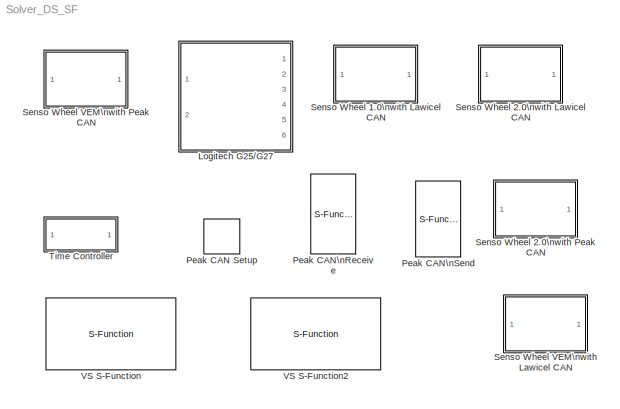
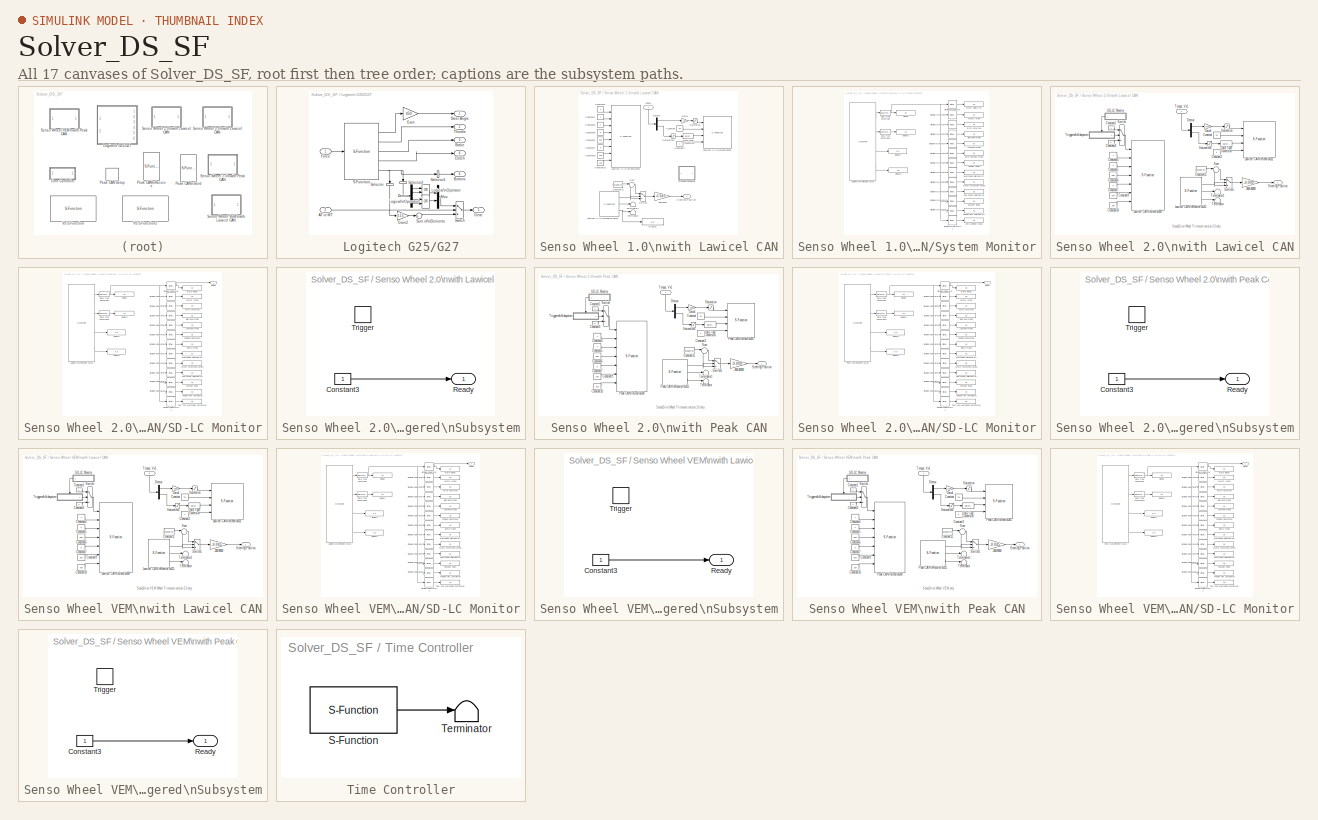
[diagram: thumbnail index - all 17 canvases of the model, root first then tree order]
MODEL Solver_DS_SF
KIND library
BLOCK [SubSystem] Logitech G25//G27
  FunctionWithSeparateData = off
  MaskDescription = Logitech G25 Steering Wheel for CarSim/TruckSim Driving Simulator\n\nInput 1: Force feedback\nInput 2: AT mode (1), MT mode (-1)\n\nOutput 1: Steering Angle (-450deg - 450deg)\nOutput 2: Throttle position (0-1)\nOutput 3: Brake position (0-1)\nOutput 4: Clutch position (0-1)\nOutput 5: Gear shift\n                MT Mode:\n                                -1:  R\n                              1-6: ...<+166ch>
  MaskDisplay = image(imread('G25.jpg'))
  MaskHideContents = off
  MaskIconFrame = on
  MaskIconOpaque = on
  MaskIconRotate = none
  MaskIconUnits = autoscale
  MaskType = CarSim DS
  MinAlgLoopOccurrences = off
  Opaque = off
  Ports = [2, 6]
  PropExecContextOutsideSubsystem = off
  RTWSystemCode = Auto
BLOCK [Inport] Logitech G25//G27/AT or MT
  IconDisplay = Port number
  Port = 2
BLOCK [Outport] Logitech G25//G27/Brake
  IconDisplay = Port number
  Port = 3
BLOCK [Outport] Logitech G25//G27/Buttons
  IconDisplay = Port number
  Port = 6
BLOCK [Outport] Logitech G25//G27/Clutch
  IconDisplay = Port number
  Port = 4
BLOCK [Demux] Logitech G25//G27/Demux
  DisplayOption = bar
  Ports = [1, 4]
BLOCK [Inport] Logitech G25//G27/Force
  IconDisplay = Port number
BLOCK [Gain] Logitech G25//G27/Gain
  Gain = 450
  OutDataTypeMode = Inherit via internal rule
  OutDataTypeStr = Inherit: Inherit via internal rule
  ParamDataTypeStr = Inherit: Inherit via internal rule
  ParameterDataTypeMode = Inherit via internal rule
  SaturateOnIntegerOverflow = off
BLOCK [Gain] Logitech G25//G27/Gain2
  Gain = [1 2 3 4 5 6 -1]
  OutDataTypeMode = Inherit via internal rule
  OutDataTypeStr = Inherit: Inherit via internal rule
  ParamDataTypeStr = Inherit: Inherit via internal rule
  ParameterDataTypeMode = Inherit via internal rule
  SaturateOnIntegerOverflow = off
BLOCK [Outport] Logitech G25//G27/Gear
  IconDisplay = Port number
  Port = 5
BLOCK [Logic] Logitech G25//G27/Logical\nOperator
  AllPortsSameDT = off
  Operator = OR
  OutDataTypeMode = boolean
  OutDataTypeStr = boolean
  Ports = [2, 1]
BLOCK [Logic] Logitech G25//G27/Logical\nOperator1
  AllPortsSameDT = off
  Operator = OR
  OutDataTypeMode = boolean
  OutDataTypeStr = boolean
  Ports = [2, 1]
BLOCK [Mux] Logitech G25//G27/Mux
  DisplayOption = bar
  Inputs = 2
  Ports = [2, 1]
BLOCK [S-Function] Logitech G25//G27/S-Function
  EnableBusSupport = off
  FunctionName = Logitech_SF
  Parameters = 19
  Ports = [1, 5]
BLOCK [Selector] Logitech G25//G27/Selector
  IndexOptions = Index vector (dialog)
  Indices = [9 10 11 12 13 14 15]
  OutputSizes = 1
  Ports = [1, 1]
BLOCK [Selector] Logitech G25//G27/Selector1
  IndexOptions = Index vector (dialog)
  Indices = [1 2 3 4 5 6 7 8 16 17 18 19]
  OutputSizes = 1
  Ports = [1, 1]
BLOCK [Selector] Logitech G25//G27/Selector2
  IndexOptions = Index vector (dialog)
  Indices = [9 6 10 5]
  OutputSizes = 1
  Ports = [1, 1]
BLOCK [Outport] Logitech G25//G27/Steer Angle
  IconDisplay = Port number
BLOCK [Sum] Logitech G25//G27/Sum of\nElements
  InputSameDT = off
  Inputs = +
  OutDataTypeMode = Inherit via internal rule
  OutDataTypeStr = Inherit: Inherit via internal rule
  Ports = [1, 1]
  SaturateOnIntegerOverflow = off
BLOCK [Switch] Logitech G25//G27/Switch
  InputSameDT = off
  SaturateOnIntegerOverflow = off
  Threshold = 0.5
BLOCK [Outport] Logitech G25//G27/Throttle
  IconDisplay = Port number
  Port = 2
BLOCK [S-Function] Peak CAN Setup
  EnableBusSupport = off
  FunctionName = PCAN_init
  MaskCallbackString = |
  MaskDescription = Peak-System USB CAN setup
  MaskDisplay = image(imread('Peak_CAN.jpg'));
  MaskEnableString = on,on
  MaskIconFrame = on
  MaskIconOpaque = on
  MaskIconRotate = none
  MaskIconUnits = autoscale
  MaskPromptString = CAN identifier range:|Baud rate (kbps):
  MaskStyleString = popup(Standard (11-bit)|Extended (29-bit)),popup(1000|500|250|100|50|20|10|5)
  MaskToolTipString = on,on
  MaskTunableValueString = on,on
  MaskValueString = Standard (11-bit)|1000
  MaskVariables = CAN_MODE=&1;szBitrate=&2;
  MaskVisibilityString = on,on
  Parameters = CAN_MODE,szBitrate
  Ports = []
  Priority = 1
BLOCK [S-Function] Peak CAN\nReceive
  EnableBusSupport = off
  FunctionName = PCAN_Read
  MaskCallbackString = |||
  MaskDescription = Peak-System USB CAN Receive.
  MaskDisplay = port_label('output',1,'Position ');port_label('output',2,'Speed ');port_label('output',3,'Motor Torque ');
  MaskEnableString = on,on,on,on
  MaskIconFrame = on
  MaskIconOpaque = on
  MaskIconRotate = none
  MaskIconUnits = autoscale
  MaskInitialization = %set_param(gcb, 'InitFcn', ['CAN_h=' adapter '_handle;']);\nnOut=length(bits_define);\n[bits_define]=formatbit(bits_define,portnames,1);\nset_param(gcb, 'Parameters', ['id,TimeStep,nOut,bits_define']);\n
  MaskPromptString = CAN ID|Sample time|Bit defination (cell array):|Port name (cell array):
  MaskStyleString = edit,edit,edit,edit
  MaskToolTipString = on,on,on,on
  MaskTunableValueString = on,on,off,off
  MaskValueString = 529|0.01|{[0:31],[32:47],[48:63]}|{'Position','Speed','Motor Torque'}
  MaskVariables = id=&1;TimeStep=&2;bits_define=@3;portnames=@4;
  MaskVisibilityString = on,on,on,on
  Parameters = id,TimeStep,nOut,bits_define
  Ports = [0, 3]
BLOCK [S-Function] Peak CAN\nSend
  EnableBusSupport = off
  FunctionName = PCAN_Send
  MaskCallbackString = ||||
  MaskDescription = Peak-System USB CAN send
  MaskDisplay = port_label('input',1,' Torque Set Value');port_label('input',2,' Friction');port_label('input',3,' Damping');port_label('input',4,' Spring Stiffness');
  MaskEnableString = on,on,on,on,on
  MaskIconFrame = on
  MaskIconOpaque = on
  MaskIconRotate = none
  MaskIconUnits = autoscale
  MaskInitialization = nOut=length(bits_define);\n[bits_define]=formatbit(bits_define,portnames,0);\nset_param(gcb, 'Parameters', ['id,len,TimeStep,nOut,bits_define']);\n
  MaskPromptString = CAN ID|Data Length|Sample time|Bit defination (cell array):|Port name (cell array):
  MaskStyleString = edit,popup(1|2|3|4|5|6|7|8),edit,edit,edit
  MaskToolTipString = on,on,on,on,on
  MaskTunableValueString = on,on,on,off,off
  MaskValueString = 513|8|0.02|{[0:15],[16:31],[32:47],[48:63]}|{'Torque Set Value','Friction','Damping','Spring Stiffness'}
  MaskVariables = id=&1;len=&2;TimeStep=&3;bits_define=@4;portnames=@5;
  MaskVisibilityString = on,on,on,on,on
  Parameters = id,len,TimeStep,nOut,bits_define
  Ports = [4]
BLOCK [SubSystem] Senso Wheel 1.0\nwith Lawicel CAN
  FunctionWithSeparateData = off
  MaskDisplay = image(imread('SensoDrive.jpg'))
  MaskHideContents = off
  MaskIconFrame = on
  MaskIconOpaque = on
  MaskIconRotate = none
  MaskIconUnits = autoscale
  MinAlgLoopOccurrences = off
  Opaque = off
  Ports = [1, 1]
  Priority = 3
  PropExecContextOutsideSubsystem = off
  RTWSystemCode = Auto
BLOCK [Gain] Senso Wheel 1.0\nwith Lawicel CAN/-360//8000
  Gain = -0.045
BLOCK [Constant] Senso Wheel 1.0\nwith Lawicel CAN/Constant
  OutDataTypeMode = uint16
  OutDataTypeStr = uint16
  Value = 20
BLOCK [Constant] Senso Wheel 1.0\nwith Lawicel CAN/Constant10
  OutDataTypeMode = uint8
  OutDataTypeStr = uint8
  Value = 100
BLOCK [Constant] Senso Wheel 1.0\nwith Lawicel CAN/Constant11
  Value = hex2dec('100000000')
  VectorParams1D = off
BLOCK [Constant] Senso Wheel 1.0\nwith Lawicel CAN/Constant2
  OutDataTypeMode = uint16
  OutDataTypeStr = uint16
BLOCK [Constant] Senso Wheel 1.0\nwith Lawicel CAN/Constant3
  OutDataTypeMode = uint8
  OutDataTypeStr = uint8
  Value = 4
BLOCK [Constant] Senso Wheel 1.0\nwith Lawicel CAN/Constant4
  OutDataTypeMode = uint8
  OutDataTypeStr = uint8
BLOCK [Constant] Senso Wheel 1.0\nwith Lawicel CAN/Constant5
  OutDataTypeMode = uint8
  OutDataTypeStr = uint8
BLOCK [Constant] Senso Wheel 1.0\nwith Lawicel CAN/Constant6
  OutDataTypeMode = uint16
  OutDataTypeStr = uint16
  Value = 580
BLOCK [Constant] Senso Wheel 1.0\nwith Lawicel CAN/Constant7
  OutDataTypeMode = int16
  OutDataTypeStr = int16
  Value = 0
BLOCK [Constant] Senso Wheel 1.0\nwith Lawicel CAN/Constant8
  OutDataTypeMode = uint8
  OutDataTypeStr = uint8
  Value = 0
BLOCK [Constant] Senso Wheel 1.0\nwith Lawicel CAN/Constant9
  OutDataTypeMode = uint8
  OutDataTypeStr = uint8
  Value = 200
BLOCK [DataTypeConversion] Senso Wheel 1.0\nwith Lawicel CAN/Data Type Conversion
  OutDataTypeMode = uint16
  OutDataTypeStr = uint16
  SaturateOnIntegerOverflow = off
BLOCK [Demux] Senso Wheel 1.0\nwith Lawicel CAN/Demux
  Outputs = 2
  Ports = [1, 2]
BLOCK [Display] Senso Wheel 1.0\nwith Lawicel CAN/Display
  Decimation = 1
  Lockdown = off
  Ports = [1]
BLOCK [Gain] Senso Wheel 1.0\nwith Lawicel CAN/Gain4
  Gain = -1000
BLOCK [Inport] Senso Wheel 1.0\nwith Lawicel CAN/Inputs
  IconDisplay = Port number
BLOCK [S-Function] Senso Wheel 1.0\nwith Lawicel CAN/Lawicel CAN\nReceive 0x211
  EnableBusSupport = off
  FunctionName = LCAN_Read
  MaskCallbackString = |||||
  MaskDisplay = port_label('output',1,'Position ');port_label('output',2,'Speed ');port_label('output',3,'Motor Torque ');
  MaskEnableString = on,on,on,on,on,on
  MaskIconFrame = on
  MaskIconOpaque = on
  MaskIconRotate = none
  MaskIconUnits = autoscale
  MaskInitialization = nOut=length(bits_define);\n[bits_define]=formatbit(bits_define,portnames,1);\nset_param(gcb, 'Parameters', [adapter(4) ',CAN_MODE,id,TimeStep,nOut,bits_define']);\n
  MaskPromptString = CAN adapter|CAN identifier range:|CAN ID|Sample time|Bit defination (cell array):|Port name (cell array):
  MaskStyleString = popup(CAN1|CAN2|CAN3|CAN4),popup(Standard (11-bit)|Extended (29-bit)),edit,edit,edit,edit
  MaskToolTipString = on,on,on,on,on,on
  MaskTunableValueString = on,on,on,on,off,off
  MaskValueString = CAN1|Standard (11-bit)|529|0.010|{[0:31],[32:47],[48:63]}|{'Position','Speed','Motor Torque'}
  MaskVariables = adapter=&1;CAN_MODE=&2;id=&3;TimeStep=&4;bits_define=@5;portnames=@6;
  MaskVisibilityString = on,on,on,on,on,on
  Parameters = 1,CAN_MODE,id,TimeStep,nOut,bits_define
  Ports = [0, 3]
BLOCK [S-Function] Senso Wheel 1.0\nwith Lawicel CAN/Lawicel CAN\nSend 0x200
  EnableBusSupport = off
  FunctionName = LCAN_Send
  MaskCallbackString = ||||||
  MaskDisplay = port_label('input',1,' Control Word');port_label('input',2,' Operating Mode');port_label('input',3,' Watch Dog');port_label('input',4,' Position Limit');port_label('input',5,' End Stop Position');port_label('input',6,' Position Offset');port_label('input',7,' Set Torque Limit');port_label('input',8,' Peak Torque Limit');
  MaskEnableString = on,on,on,on,on,on,on
  MaskIconFrame = on
  MaskIconOpaque = on
  MaskIconRotate = none
  MaskIconUnits = autoscale
  MaskInitialization = nOut=length(bits_define);\n[bits_define]=formatbit(bits_define,portnames,0);\nset_param(gcb, 'Parameters', [adapter(4) ',CAN_MODE,id,len,TimeStep,nOut,bits_define']);\n
  MaskPromptString = CAN adapter|CAN identifier range:|CAN ID|Data Length|Sample time|Bit defination (cell array):|Port name (cell array):
  MaskStyleString = popup(CAN1|CAN2|CAN3|CAN4),popup(Standard (11-bit)|Extended (29-bit)),edit,popup(1|2|3|4|5|6|7|8),edit,edit,edit
  MaskToolTipString = on,on,on,on,on,on,on
  MaskTunableValueString = on,on,on,on,on,off,off
  MaskValueString = CAN1|Standard (11-bit)|512|8|0.025|{[0:3],[4:7],[8:11],[12:15],[16:31],[32:47],[48:55],[56:63]}|{'Control Word','Operating Mode','Watch Dog','Position Limit','End Stop Position','Position Offset','Set Torque Limit','Peak Torque Limit'}
  MaskVariables = adapter=&1;CAN_MODE=&2;id=&3;len=&4;TimeStep=&5;bits_define=@6;portnames=@7;
  MaskVisibilityString = on,on,on,on,on,on,on
  Parameters = 1,CAN_MODE,id,len,TimeStep,nOut,bits_define
  Ports = [8]
BLOCK [S-Function] Senso Wheel 1.0\nwith Lawicel CAN/Lawicel CAN\nSend 0x201
  EnableBusSupport = off
  FunctionName = LCAN_Send
  MaskCallbackString = ||||||
  MaskDisplay = port_label('input',1,' Torque Set Value');port_label('input',2,' Friction');port_label('input',3,' Damping');port_label('input',4,' Spring Stiffness');
  MaskEnableString = on,on,on,on,on,on,on
  MaskIconFrame = on
  MaskIconOpaque = on
  MaskIconRotate = none
  MaskIconUnits = autoscale
  MaskInitialization = nOut=length(bits_define);\n[bits_define]=formatbit(bits_define,portnames,0);\nset_param(gcb, 'Parameters', [adapter(4) ',CAN_MODE,id,len,TimeStep,nOut,bits_define']);\n
  MaskPromptString = CAN adapter|CAN identifier range:|CAN ID|Data Length|Sample time|Bit defination (cell array):|Port name (cell array):
  MaskStyleString = popup(CAN1|CAN2|CAN3|CAN4),popup(Standard (11-bit)|Extended (29-bit)),edit,popup(1|2|3|4|5|6|7|8),edit,edit,edit
  MaskToolTipString = on,on,on,on,on,on,on
  MaskTunableValueString = on,on,on,on,on,off,off
  MaskValueString = CAN1|Standard (11-bit)|513|8|0.02|{[0:15],[16:31],[32:47],[48:63]}|{'Torque Set Value','Friction','Damping','Spring Stiffness'}
  MaskVariables = adapter=&1;CAN_MODE=&2;id=&3;len=&4;TimeStep=&5;bits_define=@6;portnames=@7;
  MaskVisibilityString = on,on,on,on,on,on,on
  Parameters = 1,CAN_MODE,id,len,TimeStep,nOut,bits_define
  Ports = [4]
BLOCK [Saturate] Senso Wheel 1.0\nwith Lawicel CAN/Saturation
  LowerLimit = -14500
  UpperLimit = 14500
BLOCK [Saturate] Senso Wheel 1.0\nwith Lawicel CAN/Saturation1
  LowerLimit = 40
  UpperLimit = 200
BLOCK [Outport] Senso Wheel 1.0\nwith Lawicel CAN/Steering Position
  IconDisplay = Port number
BLOCK [Sum] Senso Wheel 1.0\nwith Lawicel CAN/Sum
  IconShape = round
  InputSameDT = off
  Inputs = |-+
  OutDataTypeMode = Inherit via internal rule
  OutDataTypeStr = Inherit: Inherit via internal rule
  Ports = [2, 1]
BLOCK [Switch] Senso Wheel 1.0\nwith Lawicel CAN/Switch
  InputSameDT = off
  Threshold = 100000
BLOCK [SubSystem] Senso Wheel 1.0\nwith Lawicel CAN/System Monitor
  FunctionWithSeparateData = off
  MaskHideContents = off
  MinAlgLoopOccurrences = off
  Opaque = off
  Ports = []
  PropExecContextOutsideSubsystem = off
  RTWSystemCode = Auto
BLOCK [Reference] Senso Wheel 1.0\nwith Lawicel CAN/System Monitor/Bitwise\nOperator  REF=simulink/Logic and Bit\nOperations/Bitwise\nOperator
  BitMask = hex2dec('1')
  BitMaskRealWorld = Stored Integer
  NumInputPorts = 1
  Ports = [1, 1]
  SourceBlock = simulink/Logic and Bit\nOperations/Bitwise\nOperator
  SourceType = Bitwise Operator
  UseBitMask = on
  logicop = AND
BLOCK [Reference] Senso Wheel 1.0\nwith Lawicel CAN/System Monitor/Bitwise\nOperator1  REF=simulink/Logic and Bit\nOperations/Bitwise\nOperator
  BitMask = hex2dec('4')
  BitMaskRealWorld = Stored Integer
  NumInputPorts = 1
  Ports = [1, 1]
  SourceBlock = simulink/Logic and Bit\nOperations/Bitwise\nOperator
  SourceType = Bitwise Operator
  UseBitMask = on
  logicop = AND
BLOCK [Reference] Senso Wheel 1.0\nwith Lawicel CAN/System Monitor/Bitwise\nOperator10  REF=simulink/Logic and Bit\nOperations/Bitwise\nOperator
  BitMask = hex2dec('800')
  BitMaskRealWorld = Stored Integer
  NumInputPorts = 1
  Ports = [1, 1]
  SourceBlock = simulink/Logic and Bit\nOperations/Bitwise\nOperator
  SourceType = Bitwise Operator
  UseBitMask = on
  logicop = AND
BLOCK [Reference] Senso Wheel 1.0\nwith Lawicel CAN/System Monitor/Bitwise\nOperator11  REF=simulink/Logic and Bit\nOperations/Bitwise\nOperator
  BitMask = hex2dec('1000')
  BitMaskRealWorld = Stored Integer
  NumInputPorts = 1
  Ports = [1, 1]
  SourceBlock = simulink/Logic and Bit\nOperations/Bitwise\nOperator
  SourceType = Bitwise Operator
  UseBitMask = on
  logicop = AND
BLOCK [Reference] Senso Wheel 1.0\nwith Lawicel CAN/System Monitor/Bitwise\nOperator12  REF=simulink/Logic and Bit\nOperations/Bitwise\nOperator
  BitMask = hex2dec('2000')
  BitMaskRealWorld = Stored Integer
  NumInputPorts = 1
  Ports = [1, 1]
  SourceBlock = simulink/Logic and Bit\nOperations/Bitwise\nOperator
  SourceType = Bitwise Operator
  UseBitMask = on
  logicop = AND
BLOCK [Reference] Senso Wheel 1.0\nwith Lawicel CAN/System Monitor/Bitwise\nOperator2  REF=simulink/Logic and Bit\nOperations/Bitwise\nOperator
  BitMask = hex2dec('8')
  BitMaskRealWorld = Stored Integer
  NumInputPorts = 1
  Ports = [1, 1]
  SourceBlock = simulink/Logic and Bit\nOperations/Bitwise\nOperator
  SourceType = Bitwise Operator
  UseBitMask = on
  logicop = AND
BLOCK [Reference] Senso Wheel 1.0\nwith Lawicel CAN/System Monitor/Bitwise\nOperator3  REF=simulink/Logic and Bit\nOperations/Bitwise\nOperator
  BitMask = hex2dec('10')
  BitMaskRealWorld = Stored Integer
  NumInputPorts = 1
  Ports = [1, 1]
  SourceBlock = simulink/Logic and Bit\nOperations/Bitwise\nOperator
  SourceType = Bitwise Operator
  UseBitMask = on
  logicop = AND
BLOCK [Reference] Senso Wheel 1.0\nwith Lawicel CAN/System Monitor/Bitwise\nOperator4  REF=simulink/Logic and Bit\nOperations/Bitwise\nOperator
  BitMask = hex2dec('20')
  BitMaskRealWorld = Stored Integer
  NumInputPorts = 1
  Ports = [1, 1]
  SourceBlock = simulink/Logic and Bit\nOperations/Bitwise\nOperator
  SourceType = Bitwise Operator
  UseBitMask = on
  logicop = AND
BLOCK [Reference] Senso Wheel 1.0\nwith Lawicel CAN/System Monitor/Bitwise\nOperator5  REF=simulink/Logic and Bit\nOperations/Bitwise\nOperator
  BitMask = hex2dec('40')
  BitMaskRealWorld = Stored Integer
  NumInputPorts = 1
  Ports = [1, 1]
  SourceBlock = simulink/Logic and Bit\nOperations/Bitwise\nOperator
  SourceType = Bitwise Operator
  UseBitMask = on
  logicop = AND
BLOCK [Reference] Senso Wheel 1.0\nwith Lawicel CAN/System Monitor/Bitwise\nOperator6  REF=simulink/Logic and Bit\nOperations/Bitwise\nOperator
  BitMask = hex2dec('80')
  BitMaskRealWorld = Stored Integer
  NumInputPorts = 1
  Ports = [1, 1]
  SourceBlock = simulink/Logic and Bit\nOperations/Bitwise\nOperator
  SourceType = Bitwise Operator
  UseBitMask = on
  logicop = AND
BLOCK [Reference] Senso Wheel 1.0\nwith Lawicel CAN/System Monitor/Bitwise\nOperator7  REF=simulink/Logic and Bit\nOperations/Bitwise\nOperator
  BitMask = hex2dec('100')
  BitMaskRealWorld = Stored Integer
  NumInputPorts = 1
  Ports = [1, 1]
  SourceBlock = simulink/Logic and Bit\nOperations/Bitwise\nOperator
  SourceType = Bitwise Operator
  UseBitMask = on
  logicop = AND
BLOCK [Reference] Senso Wheel 1.0\nwith Lawicel CAN/System Monitor/Bitwise\nOperator8  REF=simulink/Logic and Bit\nOperations/Bitwise\nOperator
  BitMask = hex2dec('200')
  BitMaskRealWorld = Stored Integer
  NumInputPorts = 1
  Ports = [1, 1]
  SourceBlock = simulink/Logic and Bit\nOperations/Bitwise\nOperator
  SourceType = Bitwise Operator
  UseBitMask = on
  logicop = AND
BLOCK [Reference] Senso Wheel 1.0\nwith Lawicel CAN/System Monitor/Bitwise\nOperator9  REF=simulink/Logic and Bit\nOperations/Bitwise\nOperator
  BitMask = hex2dec('400')
  BitMaskRealWorld = Stored Integer
  NumInputPorts = 1
  Ports = [1, 1]
  SourceBlock = simulink/Logic and Bit\nOperations/Bitwise\nOperator
  SourceType = Bitwise Operator
  UseBitMask = on
  logicop = AND
BLOCK [DataTypeConversion] Senso Wheel 1.0\nwith Lawicel CAN/System Monitor/Data Type Conversion
  OutDataTypeMode = uint16
  OutDataTypeStr = uint16
  SaturateOnIntegerOverflow = off
BLOCK [DataTypeConversion] Senso Wheel 1.0\nwith Lawicel CAN/System Monitor/Data Type Conversion1
  OutDataTypeMode = uint16
  OutDataTypeStr = uint16
  SaturateOnIntegerOverflow = off
BLOCK [Display] Senso Wheel 1.0\nwith Lawicel CAN/System Monitor/Display
  Decimation = 1
  Lockdown = off
  Ports = [1]
BLOCK [Display] Senso Wheel 1.0\nwith Lawicel CAN/System Monitor/Display1
  Decimation = 1
  Lockdown = off
  Ports = [1]
BLOCK [Display] Senso Wheel 1.0\nwith Lawicel CAN/System Monitor/Display2
  Decimation = 1
  Lockdown = off
  Ports = [1]
BLOCK [Display] Senso Wheel 1.0\nwith Lawicel CAN/System Monitor/Display3
  Decimation = 1
  Lockdown = off
  Ports = [1]
BLOCK [Display] Senso Wheel 1.0\nwith Lawicel CAN/System Monitor/Encoder index
  Decimation = 1
  Lockdown = off
  Ports = [1]
BLOCK [Display] Senso Wheel 1.0\nwith Lawicel CAN/System Monitor/End Stops switched on
  Decimation = 1
  Lockdown = off
  Ports = [1]
BLOCK [Display] Senso Wheel 1.0\nwith Lawicel CAN/System Monitor/Error occurred
  Decimation = 1
  Lockdown = off
  Ports = [1]
BLOCK [Display] Senso Wheel 1.0\nwith Lawicel CAN/System Monitor/High level mode
  Decimation = 1
  Lockdown = off
  Ports = [1]
BLOCK [S-Function] Senso Wheel 1.0\nwith Lawicel CAN/System Monitor/Lawicel CAN\nReceive 0x210
  EnableBusSupport = off
  FunctionName = LCAN_Read
  MaskCallbackString = |||||
  MaskDisplay = port_label('output',1,'Status ');port_label('output',2,'Errors ');port_label('output',3,'End Stop Position ');port_label('output',4,'Encodeer Index Position ');
  MaskEnableString = on,on,on,on,on,on
  MaskIconFrame = on
  MaskIconOpaque = on
  MaskIconRotate = none
  MaskIconUnits = autoscale
  MaskInitialization = nOut=length(bits_define);\n[bits_define]=formatbit(bits_define,portnames,1);\nset_param(gcb, 'Parameters', [adapter(4) ',CAN_MODE,id,TimeStep,nOut,bits_define']);\n
  MaskPromptString = CAN adapter|CAN identifier range:|CAN ID|Sample time|Bit defination (cell array):|Port name (cell array):
  MaskStyleString = popup(CAN1|CAN2|CAN3|CAN4),popup(Standard (11-bit)|Extended (29-bit)),edit,edit,edit,edit
  MaskToolTipString = on,on,on,on,on,on
  MaskTunableValueString = on,on,on,on,off,off
  MaskValueString = CAN1|Standard (11-bit)|528|0.010|{[0:15],[16:31],[32:47],[48:63]}|{'Status','Errors','End Stop Position','Encodeer Index Position'}
  MaskVariables = adapter=&1;CAN_MODE=&2;id=&3;TimeStep=&4;bits_define=@5;portnames=@6;
  MaskVisibilityString = on,on,on,on,on,on
  Parameters = 1,CAN_MODE,id,TimeStep,nOut,bits_define
  Ports = [0, 4]
BLOCK [Display] Senso Wheel 1.0\nwith Lawicel CAN/System Monitor/Low level mode
  Decimation = 1
  Lockdown = off
  Ports = [1]
BLOCK [Display] Senso Wheel 1.0\nwith Lawicel CAN/System Monitor/Motor Active
  Decimation = 1
  Lockdown = off
  Ports = [1]
BLOCK [Display] Senso Wheel 1.0\nwith Lawicel CAN/System Monitor/Motor Switch off
  Decimation = 1
  Lockdown = off
  Ports = [1]
BLOCK [Display] Senso Wheel 1.0\nwith Lawicel CAN/System Monitor/Motor protection active
  Decimation = 1
  Lockdown = off
  Ports = [1]
BLOCK [Display] Senso Wheel 1.0\nwith Lawicel CAN/System Monitor/Position limit switched off
  Decimation = 1
  Lockdown = off
  Ports = [1]
BLOCK [Display] Senso Wheel 1.0\nwith Lawicel CAN/System Monitor/Rubber band
  Decimation = 1
  Lockdown = off
  Ports = [1]
BLOCK [Display] Senso Wheel 1.0\nwith Lawicel CAN/System Monitor/Watchdog switched off
  Decimation = 1
  Lockdown = off
  Ports = [1]
BLOCK [Display] Senso Wheel 1.0\nwith Lawicel CAN/System Monitor/Zero Posotion mode
  Decimation = 1
  Lockdown = off
  Ports = [1]
BLOCK [Display] Senso Wheel 1.0\nwith Lawicel CAN/System Monitor/Zero position ready
  Decimation = 1
  Lockdown = off
  Ports = [1]
BLOCK [Terminator] Senso Wheel 1.0\nwith Lawicel CAN/Terminator
BLOCK [Terminator] Senso Wheel 1.0\nwith Lawicel CAN/Terminator1
BLOCK [SubSystem] Senso Wheel 2.0\nwith Lawicel CAN
  FunctionWithSeparateData = off
  MaskDisplay = image(imread('SensoDrive.jpg'))
  MaskHideContents = off
  MaskIconFrame = on
  MaskIconOpaque = on
  MaskIconRotate = none
  MaskIconUnits = autoscale
  MinAlgLoopOccurrences = off
  Opaque = off
  Ports = [1, 1]
  Priority = 3
  PropExecContextOutsideSubsystem = off
  RTWSystemCode = Auto
BLOCK [Gain] Senso Wheel 2.0\nwith Lawicel CAN/-360//40000
  Gain = -0.009
BLOCK [Constant] Senso Wheel 2.0\nwith Lawicel CAN/Constant
  OutDataTypeMode = uint16
  OutDataTypeStr = uint16
  Value = 20
BLOCK [Constant] Senso Wheel 2.0\nwith Lawicel CAN/Constant1
  OutDataTypeMode = uint8
  OutDataTypeStr = uint8
  Value = 4
BLOCK [Constant] Senso Wheel 2.0\nwith Lawicel CAN/Constant10
  OutDataTypeMode = uint8
  OutDataTypeStr = uint8
  Value = 100
BLOCK [Constant] Senso Wheel 2.0\nwith Lawicel CAN/Constant11
  Value = hex2dec('100000000')
  VectorParams1D = off
BLOCK [Constant] Senso Wheel 2.0\nwith Lawicel CAN/Constant2
  OutDataTypeMode = uint16
  OutDataTypeStr = uint16
BLOCK [Constant] Senso Wheel 2.0\nwith Lawicel CAN/Constant3
  OutDataTypeMode = uint8
  OutDataTypeStr = uint8
  Value = 2
BLOCK [Constant] Senso Wheel 2.0\nwith Lawicel CAN/Constant4
  OutDataTypeMode = uint8
  OutDataTypeStr = uint8
BLOCK [Constant] Senso Wheel 2.0\nwith Lawicel CAN/Constant5
  OutDataTypeMode = uint8
  OutDataTypeStr = uint8
BLOCK [Constant] Senso Wheel 2.0\nwith Lawicel CAN/Constant6
  OutDataTypeMode = uint16
  OutDataTypeStr = uint16
  Value = 580
BLOCK [Constant] Senso Wheel 2.0\nwith Lawicel CAN/Constant7
  OutDataTypeMode = int16
  OutDataTypeStr = int16
  Value = 0
BLOCK [Constant] Senso Wheel 2.0\nwith Lawicel CAN/Constant9
  OutDataTypeMode = uint8
  OutDataTypeStr = uint8
  Value = 200
BLOCK [DataTypeConversion] Senso Wheel 2.0\nwith Lawicel CAN/Data Type Conversion
  OutDataTypeMode = uint16
  OutDataTypeStr = uint16
  SaturateOnIntegerOverflow = off
BLOCK [Demux] Senso Wheel 2.0\nwith Lawicel CAN/Demux
  Outputs = 2
  Ports = [1, 2]
BLOCK [Gain] Senso Wheel 2.0\nwith Lawicel CAN/Gain4
  Gain = -1000
BLOCK [S-Function] Senso Wheel 2.0\nwith Lawicel CAN/Lawicel CAN\nReceive 0x211
  EnableBusSupport = off
  FunctionName = LCAN_Read
  MaskCallbackString = |||||
  MaskDisplay = port_label('output',1,'Position ');port_label('output',2,'Speed ');port_label('output',3,'Motor Torque ');
  MaskEnableString = on,on,on,on,on,on
  MaskIconFrame = on
  MaskIconOpaque = on
  MaskIconRotate = none
  MaskIconUnits = autoscale
  MaskInitialization = nOut=length(bits_define);\n[bits_define]=formatbit(bits_define,portnames,1);\nset_param(gcb, 'Parameters', [adapter(4) ',CAN_MODE,id,TimeStep,nOut,bits_define']);\n
  MaskPromptString = CAN adapter|CAN identifier range:|CAN ID|Sample time|Bit defination (cell array):|Port name (cell array):
  MaskStyleString = popup(CAN1|CAN2|CAN3|CAN4),popup(Standard (11-bit)|Extended (29-bit)),edit,edit,edit,edit
  MaskToolTipString = on,on,on,on,on,on
  MaskTunableValueString = on,on,on,on,off,off
  MaskValueString = CAN1|Standard (11-bit)|529|0.010|{[0:31],[32:47],[48:63]}|{'Position','Speed','Motor Torque'}
  MaskVariables = adapter=&1;CAN_MODE=&2;id=&3;TimeStep=&4;bits_define=@5;portnames=@6;
  MaskVisibilityString = on,on,on,on,on,on
  Parameters = 1,CAN_MODE,id,TimeStep,nOut,bits_define
  Ports = [0, 3]
BLOCK [S-Function] Senso Wheel 2.0\nwith Lawicel CAN/Lawicel CAN\nSend 0x200
  EnableBusSupport = off
  FunctionName = LCAN_Send
  MaskCallbackString = ||||||
  MaskDisplay = port_label('input',1,' Control Word');port_label('input',2,' Operating Mode');port_label('input',3,' Aux. Functions');port_label('input',4,' End Stop Position');port_label('input',5,' Position Offset');port_label('input',6,' Set Torque Limit');port_label('input',7,' Peak Torque Limit');  <repeated x4 — deduplicated; at blocks: Lawicel CAN\nSend 0x200, Peak CAN\nSend 0x200>
  MaskEnableString = on,on,on,on,on,on,on
  MaskIconFrame = on
  MaskIconOpaque = on
  MaskIconRotate = none
  MaskIconUnits = autoscale
  MaskInitialization = nOut=length(bits_define);\n[bits_define]=formatbit(bits_define,portnames,0);\nset_param(gcb, 'Parameters', [adapter(4) ',CAN_MODE,id,len,TimeStep,nOut,bits_define']);\n
  MaskPromptString = CAN adapter|CAN identifier range:|CAN ID|Data Length|Sample time|Bit defination (cell array):|Port name (cell array):
  MaskStyleString = popup(CAN1|CAN2|CAN3|CAN4),popup(Standard (11-bit)|Extended (29-bit)),edit,popup(1|2|3|4|5|6|7|8),edit,edit,edit
  MaskToolTipString = on,on,on,on,on,on,on
  MaskTunableValueString = on,on,on,on,on,off,off
  MaskValueString = CAN1|Standard (11-bit)|512|8|0.025|{[0:3],[4:7],[8:15],[16:31],[32:47],[48:55],[56:63]}|{'Control Word','Operating Mode','Aux. Functions','End Stop Position','Position Offset','Set Torque Limit','Peak Torque Limit'}
  MaskVariables = adapter=&1;CAN_MODE=&2;id=&3;len=&4;TimeStep=&5;bits_define=@6;portnames=@7;
  MaskVisibilityString = on,on,on,on,on,on,on
  Parameters = 1,CAN_MODE,id,len,TimeStep,nOut,bits_define
  Ports = [7]
  Priority = 3
BLOCK [S-Function] Senso Wheel 2.0\nwith Lawicel CAN/Lawicel CAN\nSend 0x201
  EnableBusSupport = off
  FunctionName = LCAN_Send
  MaskCallbackString = ||||||
  MaskDisplay = port_label('input',1,' Torque Set Value');port_label('input',2,' Friction');port_label('input',3,' Damping');port_label('input',4,' Spring Stiffness');
  MaskEnableString = on,on,on,on,on,on,on
  MaskIconFrame = on
  MaskIconOpaque = on
  MaskIconRotate = none
  MaskIconUnits = autoscale
  MaskInitialization = nOut=length(bits_define);\n[bits_define]=formatbit(bits_define,portnames,0);\nset_param(gcb, 'Parameters', [adapter(4) ',CAN_MODE,id,len,TimeStep,nOut,bits_define']);\n
  MaskPromptString = CAN adapter|CAN identifier range:|CAN ID|Data Length|Sample time|Bit defination (cell array):|Port name (cell array):
  MaskStyleString = popup(CAN1|CAN2|CAN3|CAN4),popup(Standard (11-bit)|Extended (29-bit)),edit,popup(1|2|3|4|5|6|7|8),edit,edit,edit
  MaskToolTipString = on,on,on,on,on,on,on
  MaskTunableValueString = on,on,on,on,on,off,off
  MaskValueString = CAN1|Standard (11-bit)|513|8|0.02|{[0:15],[16:31],[32:47],[48:63]}|{'Torque Set Value','Friction','Damping','Spring Stiffness'}
  MaskVariables = adapter=&1;CAN_MODE=&2;id=&3;len=&4;TimeStep=&5;bits_define=@6;portnames=@7;
  MaskVisibilityString = on,on,on,on,on,on,on
  Parameters = 1,CAN_MODE,id,len,TimeStep,nOut,bits_define
  Ports = [4]
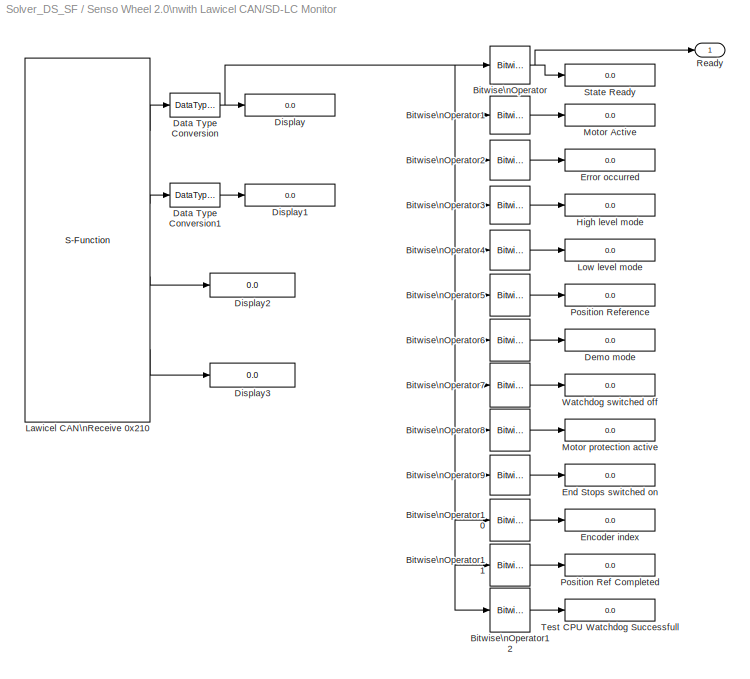
BLOCK [SubSystem] Senso Wheel 2.0\nwith Lawicel CAN/SD-LC Monitor
  FunctionWithSeparateData = off
  MaskHideContents = off
  MinAlgLoopOccurrences = off
  Opaque = off
  Ports = [0, 1]
  Priority = 4
  PropExecContextOutsideSubsystem = off
  RTWSystemCode = Auto
BLOCK [Reference] Senso Wheel 2.0\nwith Lawicel CAN/SD-LC Monitor/Bitwise\nOperator  REF=simulink/Logic and Bit\nOperations/Bitwise\nOperator
  BitMask = hex2dec('2')
  BitMaskRealWorld = Stored Integer
  NumInputPorts = 1
  Ports = [1, 1]
  SourceBlock = simulink/Logic and Bit\nOperations/Bitwise\nOperator
  SourceType = Bitwise Operator
  UseBitMask = on
  logicop = AND
BLOCK [Reference] Senso Wheel 2.0\nwith Lawicel CAN/SD-LC Monitor/Bitwise\nOperator1  REF=simulink/Logic and Bit\nOperations/Bitwise\nOperator
  BitMask = hex2dec('4')
  BitMaskRealWorld = Stored Integer
  NumInputPorts = 1
  Ports = [1, 1]
  SourceBlock = simulink/Logic and Bit\nOperations/Bitwise\nOperator
  SourceType = Bitwise Operator
  UseBitMask = on
  logicop = AND
BLOCK [Reference] Senso Wheel 2.0\nwith Lawicel CAN/SD-LC Monitor/Bitwise\nOperator10  REF=simulink/Logic and Bit\nOperations/Bitwise\nOperator
  BitMask = hex2dec('800')
  BitMaskRealWorld = Stored Integer
  NumInputPorts = 1
  Ports = [1, 1]
  SourceBlock = simulink/Logic and Bit\nOperations/Bitwise\nOperator
  SourceType = Bitwise Operator
  UseBitMask = on
  logicop = AND
BLOCK [Reference] Senso Wheel 2.0\nwith Lawicel CAN/SD-LC Monitor/Bitwise\nOperator11  REF=simulink/Logic and Bit\nOperations/Bitwise\nOperator
  BitMask = hex2dec('2000')
  BitMaskRealWorld = Stored Integer
  NumInputPorts = 1
  Ports = [1, 1]
  SourceBlock = simulink/Logic and Bit\nOperations/Bitwise\nOperator
  SourceType = Bitwise Operator
  UseBitMask = on
  logicop = AND
BLOCK [Reference] Senso Wheel 2.0\nwith Lawicel CAN/SD-LC Monitor/Bitwise\nOperator12  REF=simulink/Logic and Bit\nOperations/Bitwise\nOperator
  BitMask = hex2dec('4000')
  BitMaskRealWorld = Stored Integer
  NumInputPorts = 1
  Ports = [1, 1]
  SourceBlock = simulink/Logic and Bit\nOperations/Bitwise\nOperator
  SourceType = Bitwise Operator
  UseBitMask = on
  logicop = AND
BLOCK [Reference] Senso Wheel 2.0\nwith Lawicel CAN/SD-LC Monitor/Bitwise\nOperator2  REF=simulink/Logic and Bit\nOperations/Bitwise\nOperator
  BitMask = hex2dec('8')
  BitMaskRealWorld = Stored Integer
  NumInputPorts = 1
  Ports = [1, 1]
  SourceBlock = simulink/Logic and Bit\nOperations/Bitwise\nOperator
  SourceType = Bitwise Operator
  UseBitMask = on
  logicop = AND
BLOCK [Reference] Senso Wheel 2.0\nwith Lawicel CAN/SD-LC Monitor/Bitwise\nOperator3  REF=simulink/Logic and Bit\nOperations/Bitwise\nOperator
  BitMask = hex2dec('10')
  BitMaskRealWorld = Stored Integer
  NumInputPorts = 1
  Ports = [1, 1]
  SourceBlock = simulink/Logic and Bit\nOperations/Bitwise\nOperator
  SourceType = Bitwise Operator
  UseBitMask = on
  logicop = AND
BLOCK [Reference] Senso Wheel 2.0\nwith Lawicel CAN/SD-LC Monitor/Bitwise\nOperator4  REF=simulink/Logic and Bit\nOperations/Bitwise\nOperator
  BitMask = hex2dec('20')
  BitMaskRealWorld = Stored Integer
  NumInputPorts = 1
  Ports = [1, 1]
  SourceBlock = simulink/Logic and Bit\nOperations/Bitwise\nOperator
  SourceType = Bitwise Operator
  UseBitMask = on
  logicop = AND
BLOCK [Reference] Senso Wheel 2.0\nwith Lawicel CAN/SD-LC Monitor/Bitwise\nOperator5  REF=simulink/Logic and Bit\nOperations/Bitwise\nOperator
  BitMask = hex2dec('40')
  BitMaskRealWorld = Stored Integer
  NumInputPorts = 1
  Ports = [1, 1]
  SourceBlock = simulink/Logic and Bit\nOperations/Bitwise\nOperator
  SourceType = Bitwise Operator
  UseBitMask = on
  logicop = AND
BLOCK [Reference] Senso Wheel 2.0\nwith Lawicel CAN/SD-LC Monitor/Bitwise\nOperator6  REF=simulink/Logic and Bit\nOperations/Bitwise\nOperator
  BitMask = hex2dec('80')
  BitMaskRealWorld = Stored Integer
  NumInputPorts = 1
  Ports = [1, 1]
  SourceBlock = simulink/Logic and Bit\nOperations/Bitwise\nOperator
  SourceType = Bitwise Operator
  UseBitMask = on
  logicop = AND
BLOCK [Reference] Senso Wheel 2.0\nwith Lawicel CAN/SD-LC Monitor/Bitwise\nOperator7  REF=simulink/Logic and Bit\nOperations/Bitwise\nOperator
  BitMask = hex2dec('100')
  BitMaskRealWorld = Stored Integer
  NumInputPorts = 1
  Ports = [1, 1]
  SourceBlock = simulink/Logic and Bit\nOperations/Bitwise\nOperator
  SourceType = Bitwise Operator
  UseBitMask = on
  logicop = AND
BLOCK [Reference] Senso Wheel 2.0\nwith Lawicel CAN/SD-LC Monitor/Bitwise\nOperator8  REF=simulink/Logic and Bit\nOperations/Bitwise\nOperator
  BitMask = hex2dec('200')
  BitMaskRealWorld = Stored Integer
  NumInputPorts = 1
  Ports = [1, 1]
  SourceBlock = simulink/Logic and Bit\nOperations/Bitwise\nOperator
  SourceType = Bitwise Operator
  UseBitMask = on
  logicop = AND
BLOCK [Reference] Senso Wheel 2.0\nwith Lawicel CAN/SD-LC Monitor/Bitwise\nOperator9  REF=simulink/Logic and Bit\nOperations/Bitwise\nOperator
  BitMask = hex2dec('400')
  BitMaskRealWorld = Stored Integer
  NumInputPorts = 1
  Ports = [1, 1]
  SourceBlock = simulink/Logic and Bit\nOperations/Bitwise\nOperator
  SourceType = Bitwise Operator
  UseBitMask = on
  logicop = AND
BLOCK [DataTypeConversion] Senso Wheel 2.0\nwith Lawicel CAN/SD-LC Monitor/Data Type Conversion
  OutDataTypeMode = uint16
  OutDataTypeStr = uint16
  SaturateOnIntegerOverflow = off
BLOCK [DataTypeConversion] Senso Wheel 2.0\nwith Lawicel CAN/SD-LC Monitor/Data Type Conversion1
  OutDataTypeMode = uint16
  OutDataTypeStr = uint16
  SaturateOnIntegerOverflow = off
BLOCK [Display] Senso Wheel 2.0\nwith Lawicel CAN/SD-LC Monitor/Demo mode
  Decimation = 1
  Lockdown = off
  Ports = [1]
BLOCK [Display] Senso Wheel 2.0\nwith Lawicel CAN/SD-LC Monitor/Display
  Decimation = 1
  Lockdown = off
  Ports = [1]
BLOCK [Display] Senso Wheel 2.0\nwith Lawicel CAN/SD-LC Monitor/Display1
  Decimation = 1
  Lockdown = off
  Ports = [1]
BLOCK [Display] Senso Wheel 2.0\nwith Lawicel CAN/SD-LC Monitor/Display2
  Decimation = 1
  Lockdown = off
  Ports = [1]
BLOCK [Display] Senso Wheel 2.0\nwith Lawicel CAN/SD-LC Monitor/Display3
  Decimation = 1
  Lockdown = off
  Ports = [1]
BLOCK [Display] Senso Wheel 2.0\nwith Lawicel CAN/SD-LC Monitor/Encoder index
  Decimation = 1
  Lockdown = off
  Ports = [1]
BLOCK [Display] Senso Wheel 2.0\nwith Lawicel CAN/SD-LC Monitor/End Stops switched on
  Decimation = 1
  Lockdown = off
  Ports = [1]
BLOCK [Display] Senso Wheel 2.0\nwith Lawicel CAN/SD-LC Monitor/Error occurred
  Decimation = 1
  Lockdown = off
  Ports = [1]
BLOCK [Display] Senso Wheel 2.0\nwith Lawicel CAN/SD-LC Monitor/High level mode
  Decimation = 1
  Lockdown = off
  Ports = [1]
BLOCK [S-Function] Senso Wheel 2.0\nwith Lawicel CAN/SD-LC Monitor/Lawicel CAN\nReceive 0x210
  EnableBusSupport = off
  FunctionName = LCAN_Read
  MaskCallbackString = |||||
  MaskDisplay = port_label('output',1,'Status ');port_label('output',2,'Errors ');port_label('output',3,'End Stop Position ');port_label('output',4,'Encodeer Index Position ');
  MaskEnableString = on,on,on,on,on,on
  MaskIconFrame = on
  MaskIconOpaque = on
  MaskIconRotate = none
  MaskIconUnits = autoscale
  MaskInitialization = nOut=length(bits_define);\n[bits_define]=formatbit(bits_define,portnames,1);\nset_param(gcb, 'Parameters', [adapter(4) ',CAN_MODE,id,TimeStep,nOut,bits_define']);\n
  MaskPromptString = CAN adapter|CAN identifier range:|CAN ID|Sample time|Bit defination (cell array):|Port name (cell array):
  MaskStyleString = popup(CAN1|CAN2|CAN3|CAN4),popup(Standard (11-bit)|Extended (29-bit)),edit,edit,edit,edit
  MaskToolTipString = on,on,on,on,on,on
  MaskTunableValueString = on,on,on,on,off,off
  MaskValueString = CAN1|Standard (11-bit)|528|0.1|{[0:15],[16:31],[32:47],[48:63]}|{'Status','Errors','End Stop Position','Encodeer Index Position'}
  MaskVariables = adapter=&1;CAN_MODE=&2;id=&3;TimeStep=&4;bits_define=@5;portnames=@6;
  MaskVisibilityString = on,on,on,on,on,on
  Parameters = 1,CAN_MODE,id,TimeStep,nOut,bits_define
  Ports = [0, 4]
BLOCK [Display] Senso Wheel 2.0\nwith Lawicel CAN/SD-LC Monitor/Low level mode
  Decimation = 1
  Lockdown = off
  Ports = [1]
BLOCK [Display] Senso Wheel 2.0\nwith Lawicel CAN/SD-LC Monitor/Motor Active
  Decimation = 1
  Lockdown = off
  Ports = [1]
BLOCK [Display] Senso Wheel 2.0\nwith Lawicel CAN/SD-LC Monitor/Motor protection active
  Decimation = 1
  Lockdown = off
  Ports = [1]
BLOCK [Display] Senso Wheel 2.0\nwith Lawicel CAN/SD-LC Monitor/Position Ref Completed
  Decimation = 1
  Lockdown = off
  Ports = [1]
BLOCK [Display] Senso Wheel 2.0\nwith Lawicel CAN/SD-LC Monitor/Position Reference
  Decimation = 1
  Lockdown = off
  Ports = [1]
BLOCK [Outport] Senso Wheel 2.0\nwith Lawicel CAN/SD-LC Monitor/Ready
  IconDisplay = Port number
  InitialOutput = 0
BLOCK [Display] Senso Wheel 2.0\nwith Lawicel CAN/SD-LC Monitor/State Ready
  Decimation = 1
  Lockdown = off
  Ports = [1]
BLOCK [Display] Senso Wheel 2.0\nwith Lawicel CAN/SD-LC Monitor/Test CPU Watchdog Successfull
  Decimation = 1
  Lockdown = off
  Ports = [1]
BLOCK [Display] Senso Wheel 2.0\nwith Lawicel CAN/SD-LC Monitor/Watchdog switched off
  Decimation = 1
  Lockdown = off
  Ports = [1]
BLOCK [Saturate] Senso Wheel 2.0\nwith Lawicel CAN/Saturation
  LowerLimit = -14500
  UpperLimit = 14500
BLOCK [Saturate] Senso Wheel 2.0\nwith Lawicel CAN/Saturation1
  LowerLimit = 40
  UpperLimit = 200
BLOCK [Outport] Senso Wheel 2.0\nwith Lawicel CAN/Steering Position
  IconDisplay = Port number
BLOCK [Sum] Senso Wheel 2.0\nwith Lawicel CAN/Sum
  IconShape = round
  InputSameDT = off
  Inputs = |-+
  OutDataTypeMode = Inherit via internal rule
  OutDataTypeStr = Inherit: Inherit via internal rule
  Ports = [2, 1]
BLOCK [Switch] Senso Wheel 2.0\nwith Lawicel CAN/Switch
  InputSameDT = off
  Threshold = 0.5
BLOCK [Switch] Senso Wheel 2.0\nwith Lawicel CAN/Switch1
  InputSameDT = off
  Threshold = 100000
BLOCK [Terminator] Senso Wheel 2.0\nwith Lawicel CAN/Terminator
BLOCK [Terminator] Senso Wheel 2.0\nwith Lawicel CAN/Terminator1
BLOCK [Inport] Senso Wheel 2.0\nwith Lawicel CAN/Torque, Vx1
  IconDisplay = Port number
BLOCK [SubSystem] Senso Wheel 2.0\nwith Lawicel CAN/Triggered\nSubsystem
  FunctionWithSeparateData = off
  MaskHideContents = off
  MinAlgLoopOccurrences = off
  Opaque = off
  Ports = [0, 1, 0, 1]
  PropExecContextOutsideSubsystem = off
  RTWSystemCode = Auto
  TreatAsAtomicUnit = on
BLOCK [Constant] Senso Wheel 2.0\nwith Lawicel CAN/Triggered\nSubsystem/Constant3
  OutDataTypeMode = uint8
  OutDataTypeStr = uint8
BLOCK [Outport] Senso Wheel 2.0\nwith Lawicel CAN/Triggered\nSubsystem/Ready
  IconDisplay = Port number
  InitialOutput = 0
BLOCK [TriggerPort] Senso Wheel 2.0\nwith Lawicel CAN/Triggered\nSubsystem/Trigger
  Ports = []
  StatesWhenEnabling = held
BLOCK [SubSystem] Senso Wheel 2.0\nwith Peak CAN
  FunctionWithSeparateData = off
  MaskDisplay = image(imread('SensoDrive.jpg'))
  MaskHideContents = off
  MaskIconFrame = on
  MaskIconOpaque = on
  MaskIconRotate = none
  MaskIconUnits = autoscale
  MinAlgLoopOccurrences = off
  Opaque = off
  Ports = [1, 1]
  Priority = 3
  PropExecContextOutsideSubsystem = off
  RTWSystemCode = Auto
BLOCK [Gain] Senso Wheel 2.0\nwith Peak CAN/-360//40000
  Gain = -0.009
BLOCK [Constant] Senso Wheel 2.0\nwith Peak CAN/Constant
  OutDataTypeMode = uint16
  OutDataTypeStr = uint16
  Value = 20
BLOCK [Constant] Senso Wheel 2.0\nwith Peak CAN/Constant1
  OutDataTypeMode = uint8
  OutDataTypeStr = uint8
  Value = 4
BLOCK [Constant] Senso Wheel 2.0\nwith Peak CAN/Constant10
  OutDataTypeMode = uint8
  OutDataTypeStr = uint8
  Value = 100
BLOCK [Constant] Senso Wheel 2.0\nwith Peak CAN/Constant11
  Value = hex2dec('100000000')
  VectorParams1D = off
BLOCK [Constant] Senso Wheel 2.0\nwith Peak CAN/Constant2
  OutDataTypeMode = uint16
  OutDataTypeStr = uint16
BLOCK [Constant] Senso Wheel 2.0\nwith Peak CAN/Constant3
  OutDataTypeMode = uint8
  OutDataTypeStr = uint8
  Value = 2
BLOCK [Constant] Senso Wheel 2.0\nwith Peak CAN/Constant4
  OutDataTypeMode = uint8
  OutDataTypeStr = uint8
BLOCK [Constant] Senso Wheel 2.0\nwith Peak CAN/Constant5
  OutDataTypeMode = uint8
  OutDataTypeStr = uint8
BLOCK [Constant] Senso Wheel 2.0\nwith Peak CAN/Constant6
  OutDataTypeMode = uint16
  OutDataTypeStr = uint16
  Value = 580
BLOCK [Constant] Senso Wheel 2.0\nwith Peak CAN/Constant7
  OutDataTypeMode = int16
  OutDataTypeStr = int16
  Value = 0
BLOCK [Constant] Senso Wheel 2.0\nwith Peak CAN/Constant9
  OutDataTypeMode = uint8
  OutDataTypeStr = uint8
  Value = 200
BLOCK [DataTypeConversion] Senso Wheel 2.0\nwith Peak CAN/Data Type Conversion
  OutDataTypeMode = uint16
  OutDataTypeStr = uint16
  SaturateOnIntegerOverflow = off
BLOCK [Demux] Senso Wheel 2.0\nwith Peak CAN/Demux
  Outputs = 2
  Ports = [1, 2]
BLOCK [Gain] Senso Wheel 2.0\nwith Peak CAN/Gain4
  Gain = -1000
BLOCK [S-Function] Senso Wheel 2.0\nwith Peak CAN/Peak CAN\nReceive 0x211
  AncestorBlock = Solver_SF/Lawicel CAN\nReceive
  EnableBusSupport = off
  FunctionName = PCAN_Read
  MaskCallbackString = |||
  MaskDescription = Lawicel CAN Receive.
  MaskDisplay = port_label('output',1,'Position ');port_label('output',2,'Speed ');port_label('output',3,'Motor Torque ');
  MaskEnableString = on,on,on,on
  MaskIconFrame = on
  MaskIconOpaque = on
  MaskIconRotate = none
  MaskIconUnits = autoscale
  MaskInitialization = nOut=length(bits_define);\n[bits_define]=formatbit(bits_define,portnames,1);\nset_param(gcb, 'Parameters', ['id,TimeStep,nOut,bits_define']);\n
  MaskPromptString = CAN ID|Sample time|Bit defination (cell array):|Port name (cell array):
  MaskStyleString = edit,edit,edit,edit
  MaskToolTipString = on,on,on,on
  MaskTunableValueString = on,on,off,off
  MaskType = CarSim DS
  MaskValueString = 529|0.01|{[0:31],[32:47],[48:63]}|{'Position','Speed','Motor Torque'}
  MaskVariables = id=&1;TimeStep=&2;bits_define=@3;portnames=@4;
  MaskVisibilityString = on,on,on,on
  Parameters = id,TimeStep,nOut,bits_define
  Ports = [0, 3]
BLOCK [S-Function] Senso Wheel 2.0\nwith Peak CAN/Peak CAN\nSend 0x200
  AncestorBlock = Solver_SF/Peak CAN\nSend
  EnableBusSupport = off
  FunctionName = PCAN_Send
  MaskCallbackString = ||||
  MaskDescription = Peak-System USB CAN send
  MaskEnableString = on,on,on,on,on
  MaskIconFrame = on
  MaskIconOpaque = on
  MaskIconRotate = none
  MaskIconUnits = autoscale
  MaskInitialization = nOut=length(bits_define);\n[bits_define]=formatbit(bits_define,portnames,0);\nset_param(gcb, 'Parameters', ['id,len,TimeStep,nOut,bits_define']);\n
  MaskPromptString = CAN ID|Data Length|Sample time|Bit defination (cell array):|Port name (cell array):
  MaskStyleString = edit,popup(1|2|3|4|5|6|7|8),edit,edit,edit
  MaskToolTipString = on,on,on,on,on
  MaskTunableValueString = on,on,on,off,off
  MaskValueString = 512|8|0.025|{[0:3],[4:7],[8:15],[16:31],[32:47],[48:55],[56:63]}|{'Control Word','Operating Mode','Aux. Functions','End Stop Position','Position Offset','Set Torque Limit','Peak Torque Limit'}
  MaskVariables = id=&1;len=&2;TimeStep=&3;bits_define=@4;portnames=@5;
  MaskVisibilityString = on,on,on,on,on
  Parameters = id,len,TimeStep,nOut,bits_define
  Ports = [7]
BLOCK [S-Function] Senso Wheel 2.0\nwith Peak CAN/Peak CAN\nSend 0x201
  AncestorBlock = Solver_SF/Peak CAN\nSend
  EnableBusSupport = off
  FunctionName = PCAN_Send
  MaskCallbackString = ||||
  MaskDescription = Peak-System USB CAN send
  MaskDisplay = port_label('input',1,' Torque Set Value');port_label('input',2,' Friction');port_label('input',3,' Damping');port_label('input',4,' Spring Stiffness');
  MaskEnableString = on,on,on,on,on
  MaskIconFrame = on
  MaskIconOpaque = on
  MaskIconRotate = none
  MaskIconUnits = autoscale
  MaskInitialization = nOut=length(bits_define);\n[bits_define]=formatbit(bits_define,portnames,0);\nset_param(gcb, 'Parameters', ['id,len,TimeStep,nOut,bits_define']);\n
  MaskPromptString = CAN ID|Data Length|Sample time|Bit defination (cell array):|Port name (cell array):
  MaskStyleString = edit,popup(1|2|3|4|5|6|7|8),edit,edit,edit
  MaskToolTipString = on,on,on,on,on
  MaskTunableValueString = on,on,on,off,off
  MaskValueString = 513|8|0.02|{[0:15],[16:31],[32:47],[48:63]}|{'Torque Set Value','Friction','Damping','Spring Stiffness'}
  MaskVariables = id=&1;len=&2;TimeStep=&3;bits_define=@4;portnames=@5;
  MaskVisibilityString = on,on,on,on,on
  Parameters = id,len,TimeStep,nOut,bits_define
  Ports = [4]
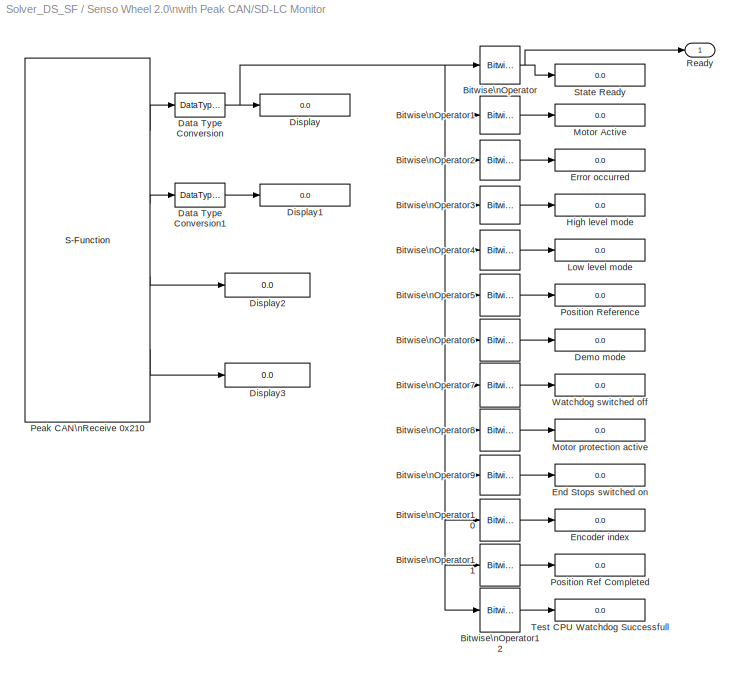
BLOCK [SubSystem] Senso Wheel 2.0\nwith Peak CAN/SD-LC Monitor
  FunctionWithSeparateData = off
  MaskHideContents = off
  MinAlgLoopOccurrences = off
  Opaque = off
  Ports = [0, 1]
  Priority = 4
  PropExecContextOutsideSubsystem = off
  RTWSystemCode = Auto
BLOCK [Reference] Senso Wheel 2.0\nwith Peak CAN/SD-LC Monitor/Bitwise\nOperator  REF=simulink/Logic and Bit\nOperations/Bitwise\nOperator
  BitMask = hex2dec('2')
  BitMaskRealWorld = Stored Integer
  NumInputPorts = 1
  Ports = [1, 1]
  SourceBlock = simulink/Logic and Bit\nOperations/Bitwise\nOperator
  SourceType = Bitwise Operator
  UseBitMask = on
  logicop = AND
BLOCK [Reference] Senso Wheel 2.0\nwith Peak CAN/SD-LC Monitor/Bitwise\nOperator1  REF=simulink/Logic and Bit\nOperations/Bitwise\nOperator
  BitMask = hex2dec('4')
  BitMaskRealWorld = Stored Integer
  NumInputPorts = 1
  Ports = [1, 1]
  SourceBlock = simulink/Logic and Bit\nOperations/Bitwise\nOperator
  SourceType = Bitwise Operator
  UseBitMask = on
  logicop = AND
BLOCK [Reference] Senso Wheel 2.0\nwith Peak CAN/SD-LC Monitor/Bitwise\nOperator10  REF=simulink/Logic and Bit\nOperations/Bitwise\nOperator
  BitMask = hex2dec('800')
  BitMaskRealWorld = Stored Integer
  NumInputPorts = 1
  Ports = [1, 1]
  SourceBlock = simulink/Logic and Bit\nOperations/Bitwise\nOperator
  SourceType = Bitwise Operator
  UseBitMask = on
  logicop = AND
BLOCK [Reference] Senso Wheel 2.0\nwith Peak CAN/SD-LC Monitor/Bitwise\nOperator11  REF=simulink/Logic and Bit\nOperations/Bitwise\nOperator
  BitMask = hex2dec('2000')
  BitMaskRealWorld = Stored Integer
  NumInputPorts = 1
  Ports = [1, 1]
  SourceBlock = simulink/Logic and Bit\nOperations/Bitwise\nOperator
  SourceType = Bitwise Operator
  UseBitMask = on
  logicop = AND
BLOCK [Reference] Senso Wheel 2.0\nwith Peak CAN/SD-LC Monitor/Bitwise\nOperator12  REF=simulink/Logic and Bit\nOperations/Bitwise\nOperator
  BitMask = hex2dec('4000')
  BitMaskRealWorld = Stored Integer
  NumInputPorts = 1
  Ports = [1, 1]
  SourceBlock = simulink/Logic and Bit\nOperations/Bitwise\nOperator
  SourceType = Bitwise Operator
  UseBitMask = on
  logicop = AND
BLOCK [Reference] Senso Wheel 2.0\nwith Peak CAN/SD-LC Monitor/Bitwise\nOperator2  REF=simulink/Logic and Bit\nOperations/Bitwise\nOperator
  BitMask = hex2dec('8')
  BitMaskRealWorld = Stored Integer
  NumInputPorts = 1
  Ports = [1, 1]
  SourceBlock = simulink/Logic and Bit\nOperations/Bitwise\nOperator
  SourceType = Bitwise Operator
  UseBitMask = on
  logicop = AND
BLOCK [Reference] Senso Wheel 2.0\nwith Peak CAN/SD-LC Monitor/Bitwise\nOperator3  REF=simulink/Logic and Bit\nOperations/Bitwise\nOperator
  BitMask = hex2dec('10')
  BitMaskRealWorld = Stored Integer
  NumInputPorts = 1
  Ports = [1, 1]
  SourceBlock = simulink/Logic and Bit\nOperations/Bitwise\nOperator
  SourceType = Bitwise Operator
  UseBitMask = on
  logicop = AND
BLOCK [Reference] Senso Wheel 2.0\nwith Peak CAN/SD-LC Monitor/Bitwise\nOperator4  REF=simulink/Logic and Bit\nOperations/Bitwise\nOperator
  BitMask = hex2dec('20')
  BitMaskRealWorld = Stored Integer
  NumInputPorts = 1
  Ports = [1, 1]
  SourceBlock = simulink/Logic and Bit\nOperations/Bitwise\nOperator
  SourceType = Bitwise Operator
  UseBitMask = on
  logicop = AND
BLOCK [Reference] Senso Wheel 2.0\nwith Peak CAN/SD-LC Monitor/Bitwise\nOperator5  REF=simulink/Logic and Bit\nOperations/Bitwise\nOperator
  BitMask = hex2dec('40')
  BitMaskRealWorld = Stored Integer
  NumInputPorts = 1
  Ports = [1, 1]
  SourceBlock = simulink/Logic and Bit\nOperations/Bitwise\nOperator
  SourceType = Bitwise Operator
  UseBitMask = on
  logicop = AND
BLOCK [Reference] Senso Wheel 2.0\nwith Peak CAN/SD-LC Monitor/Bitwise\nOperator6  REF=simulink/Logic and Bit\nOperations/Bitwise\nOperator
  BitMask = hex2dec('80')
  BitMaskRealWorld = Stored Integer
  NumInputPorts = 1
  Ports = [1, 1]
  SourceBlock = simulink/Logic and Bit\nOperations/Bitwise\nOperator
  SourceType = Bitwise Operator
  UseBitMask = on
  logicop = AND
BLOCK [Reference] Senso Wheel 2.0\nwith Peak CAN/SD-LC Monitor/Bitwise\nOperator7  REF=simulink/Logic and Bit\nOperations/Bitwise\nOperator
  BitMask = hex2dec('100')
  BitMaskRealWorld = Stored Integer
  NumInputPorts = 1
  Ports = [1, 1]
  SourceBlock = simulink/Logic and Bit\nOperations/Bitwise\nOperator
  SourceType = Bitwise Operator
  UseBitMask = on
  logicop = AND
BLOCK [Reference] Senso Wheel 2.0\nwith Peak CAN/SD-LC Monitor/Bitwise\nOperator8  REF=simulink/Logic and Bit\nOperations/Bitwise\nOperator
  BitMask = hex2dec('200')
  BitMaskRealWorld = Stored Integer
  NumInputPorts = 1
  Ports = [1, 1]
  SourceBlock = simulink/Logic and Bit\nOperations/Bitwise\nOperator
  SourceType = Bitwise Operator
  UseBitMask = on
  logicop = AND
BLOCK [Reference] Senso Wheel 2.0\nwith Peak CAN/SD-LC Monitor/Bitwise\nOperator9  REF=simulink/Logic and Bit\nOperations/Bitwise\nOperator
  BitMask = hex2dec('400')
  BitMaskRealWorld = Stored Integer
  NumInputPorts = 1
  Ports = [1, 1]
  SourceBlock = simulink/Logic and Bit\nOperations/Bitwise\nOperator
  SourceType = Bitwise Operator
  UseBitMask = on
  logicop = AND
BLOCK [DataTypeConversion] Senso Wheel 2.0\nwith Peak CAN/SD-LC Monitor/Data Type Conversion
  OutDataTypeMode = uint16
  OutDataTypeStr = uint16
  SaturateOnIntegerOverflow = off
BLOCK [DataTypeConversion] Senso Wheel 2.0\nwith Peak CAN/SD-LC Monitor/Data Type Conversion1
  OutDataTypeMode = uint16
  OutDataTypeStr = uint16
  SaturateOnIntegerOverflow = off
BLOCK [Display] Senso Wheel 2.0\nwith Peak CAN/SD-LC Monitor/Demo mode
  Decimation = 1
  Lockdown = off
  Ports = [1]
BLOCK [Display] Senso Wheel 2.0\nwith Peak CAN/SD-LC Monitor/Display
  Decimation = 1
  Lockdown = off
  Ports = [1]
BLOCK [Display] Senso Wheel 2.0\nwith Peak CAN/SD-LC Monitor/Display1
  Decimation = 1
  Lockdown = off
  Ports = [1]
BLOCK [Display] Senso Wheel 2.0\nwith Peak CAN/SD-LC Monitor/Display2
  Decimation = 1
  Lockdown = off
  Ports = [1]
BLOCK [Display] Senso Wheel 2.0\nwith Peak CAN/SD-LC Monitor/Display3
  Decimation = 1
  Lockdown = off
  Ports = [1]
BLOCK [Display] Senso Wheel 2.0\nwith Peak CAN/SD-LC Monitor/Encoder index
  Decimation = 1
  Lockdown = off
  Ports = [1]
BLOCK [Display] Senso Wheel 2.0\nwith Peak CAN/SD-LC Monitor/End Stops switched on
  Decimation = 1
  Lockdown = off
  Ports = [1]
BLOCK [Display] Senso Wheel 2.0\nwith Peak CAN/SD-LC Monitor/Error occurred
  Decimation = 1
  Lockdown = off
  Ports = [1]
BLOCK [Display] Senso Wheel 2.0\nwith Peak CAN/SD-LC Monitor/High level mode
  Decimation = 1
  Lockdown = off
  Ports = [1]
BLOCK [Display] Senso Wheel 2.0\nwith Peak CAN/SD-LC Monitor/Low level mode
  Decimation = 1
  Lockdown = off
  Ports = [1]
BLOCK [Display] Senso Wheel 2.0\nwith Peak CAN/SD-LC Monitor/Motor Active
  Decimation = 1
  Lockdown = off
  Ports = [1]
BLOCK [Display] Senso Wheel 2.0\nwith Peak CAN/SD-LC Monitor/Motor protection active
  Decimation = 1
  Lockdown = off
  Ports = [1]
BLOCK [S-Function] Senso Wheel 2.0\nwith Peak CAN/SD-LC Monitor/Peak CAN\nReceive 0x210
  EnableBusSupport = off
  FunctionName = PCAN_Read
  MaskCallbackString = |||
  MaskDisplay = port_label('output',1,'Status ');port_label('output',2,'Errors ');port_label('output',3,'End Stop Position ');port_label('output',4,'Encodeer Index Position ');
  MaskEnableString = on,on,on,on
  MaskIconFrame = on
  MaskIconOpaque = on
  MaskIconRotate = none
  MaskIconUnits = autoscale
  MaskInitialization = nOut=length(bits_define);\n[bits_define]=formatbit(bits_define,portnames,1);\nset_param(gcb, 'Parameters', ['id,TimeStep,nOut,bits_define']);\n
  MaskPromptString = CAN ID|Sample time|Bit defination (cell array):|Port name (cell array):
  MaskStyleString = edit,edit,edit,edit
  MaskToolTipString = on,on,on,on
  MaskTunableValueString = on,on,off,off
  MaskValueString = 528|0.1|{[0:15],[16:31],[32:47],[48:63]}|{'Status','Errors','End Stop Position','Encodeer Index Position'}
  MaskVariables = id=&1;TimeStep=&2;bits_define=@3;portnames=@4;
  MaskVisibilityString = on,on,on,on
  Parameters = id,TimeStep,nOut,bits_define
  Ports = [0, 4]
BLOCK [Display] Senso Wheel 2.0\nwith Peak CAN/SD-LC Monitor/Position Ref Completed
  Decimation = 1
  Lockdown = off
  Ports = [1]
BLOCK [Display] Senso Wheel 2.0\nwith Peak CAN/SD-LC Monitor/Position Reference
  Decimation = 1
  Lockdown = off
  Ports = [1]
BLOCK [Outport] Senso Wheel 2.0\nwith Peak CAN/SD-LC Monitor/Ready
  IconDisplay = Port number
  InitialOutput = 0
BLOCK [Display] Senso Wheel 2.0\nwith Peak CAN/SD-LC Monitor/State Ready
  Decimation = 1
  Lockdown = off
  Ports = [1]
BLOCK [Display] Senso Wheel 2.0\nwith Peak CAN/SD-LC Monitor/Test CPU Watchdog Successfull
  Decimation = 1
  Lockdown = off
  Ports = [1]
BLOCK [Display] Senso Wheel 2.0\nwith Peak CAN/SD-LC Monitor/Watchdog switched off
  Decimation = 1
  Lockdown = off
  Ports = [1]
BLOCK [Saturate] Senso Wheel 2.0\nwith Peak CAN/Saturation
  LowerLimit = -14500
  UpperLimit = 14500
BLOCK [Saturate] Senso Wheel 2.0\nwith Peak CAN/Saturation1
  LowerLimit = 40
  UpperLimit = 200
BLOCK [Outport] Senso Wheel 2.0\nwith Peak CAN/Steering Position
  IconDisplay = Port number
BLOCK [Sum] Senso Wheel 2.0\nwith Peak CAN/Sum
  IconShape = round
  InputSameDT = off
  Inputs = |-+
  OutDataTypeMode = Inherit via internal rule
  OutDataTypeStr = Inherit: Inherit via internal rule
  Ports = [2, 1]
BLOCK [Switch] Senso Wheel 2.0\nwith Peak CAN/Switch
  InputSameDT = off
  Threshold = 0.5
BLOCK [Switch] Senso Wheel 2.0\nwith Peak CAN/Switch1
  InputSameDT = off
  Threshold = 100000
BLOCK [Terminator] Senso Wheel 2.0\nwith Peak CAN/Terminator
BLOCK [Terminator] Senso Wheel 2.0\nwith Peak CAN/Terminator1
BLOCK [Inport] Senso Wheel 2.0\nwith Peak CAN/Torque, Vx1
  IconDisplay = Port number
BLOCK [SubSystem] Senso Wheel 2.0\nwith Peak CAN/Triggered\nSubsystem
  FunctionWithSeparateData = off
  MaskHideContents = off
  MinAlgLoopOccurrences = off
  Opaque = off
  Ports = [0, 1, 0, 1]
  PropExecContextOutsideSubsystem = off
  RTWSystemCode = Auto
  TreatAsAtomicUnit = on
BLOCK [Constant] Senso Wheel 2.0\nwith Peak CAN/Triggered\nSubsystem/Constant3
  OutDataTypeMode = uint8
  OutDataTypeStr = uint8
BLOCK [Outport] Senso Wheel 2.0\nwith Peak CAN/Triggered\nSubsystem/Ready
  IconDisplay = Port number
  InitialOutput = 0
BLOCK [TriggerPort] Senso Wheel 2.0\nwith Peak CAN/Triggered\nSubsystem/Trigger
  Ports = []
  StatesWhenEnabling = held
BLOCK [SubSystem] Senso Wheel VEM\nwith Lawicel CAN
  FunctionWithSeparateData = off
  MaskDisplay = image(imread('SensoDrive.jpg'))
  MaskHideContents = off
  MaskIconFrame = on
  MaskIconOpaque = on
  MaskIconRotate = none
  MaskIconUnits = autoscale
  MinAlgLoopOccurrences = off
  Opaque = off
  Ports = [1, 1]
  Priority = 3
  PropExecContextOutsideSubsystem = off
  RTWSystemCode = Auto
BLOCK [Gain] Senso Wheel VEM\nwith Lawicel CAN/-360//8000
  Gain = -0.045
BLOCK [Constant] Senso Wheel VEM\nwith Lawicel CAN/Constant
  OutDataTypeMode = uint16
  OutDataTypeStr = uint16
  Value = 20
BLOCK [Constant] Senso Wheel VEM\nwith Lawicel CAN/Constant1
  OutDataTypeMode = uint8
  OutDataTypeStr = uint8
  Value = 4
BLOCK [Constant] Senso Wheel VEM\nwith Lawicel CAN/Constant10
  OutDataTypeMode = uint8
  OutDataTypeStr = uint8
  Value = 100
BLOCK [Constant] Senso Wheel VEM\nwith Lawicel CAN/Constant11
  Value = hex2dec('100000000')
  VectorParams1D = off
BLOCK [Constant] Senso Wheel VEM\nwith Lawicel CAN/Constant2
  OutDataTypeMode = uint16
  OutDataTypeStr = uint16
BLOCK [Constant] Senso Wheel VEM\nwith Lawicel CAN/Constant3
  OutDataTypeMode = uint8
  OutDataTypeStr = uint8
  Value = 2
BLOCK [Constant] Senso Wheel VEM\nwith Lawicel CAN/Constant4
  OutDataTypeMode = uint8
  OutDataTypeStr = uint8
BLOCK [Constant] Senso Wheel VEM\nwith Lawicel CAN/Constant5
  OutDataTypeMode = uint8
  OutDataTypeStr = uint8
BLOCK [Constant] Senso Wheel VEM\nwith Lawicel CAN/Constant6
  OutDataTypeMode = uint16
  OutDataTypeStr = uint16
  Value = 580
BLOCK [Constant] Senso Wheel VEM\nwith Lawicel CAN/Constant7
  OutDataTypeMode = int16
  OutDataTypeStr = int16
  Value = 0
BLOCK [Constant] Senso Wheel VEM\nwith Lawicel CAN/Constant9
  OutDataTypeMode = uint8
  OutDataTypeStr = uint8
  Value = 200
BLOCK [DataTypeConversion] Senso Wheel VEM\nwith Lawicel CAN/Data Type Conversion
  OutDataTypeMode = uint16
  OutDataTypeStr = uint16
  SaturateOnIntegerOverflow = off
BLOCK [Demux] Senso Wheel VEM\nwith Lawicel CAN/Demux
  Outputs = 2
  Ports = [1, 2]
BLOCK [Gain] Senso Wheel VEM\nwith Lawicel CAN/Gain4
  Gain = -1000
BLOCK [S-Function] Senso Wheel VEM\nwith Lawicel CAN/Lawicel CAN\nReceive 0x211
  EnableBusSupport = off
  FunctionName = LCAN_Read
  MaskCallbackString = |||||
  MaskDisplay = port_label('output',1,'Position ');port_label('output',2,'Speed ');port_label('output',3,'Motor Torque ');
  MaskEnableString = on,on,on,on,on,on
  MaskIconFrame = on
  MaskIconOpaque = on
  MaskIconRotate = none
  MaskIconUnits = autoscale
  MaskInitialization = nOut=length(bits_define);\n[bits_define]=formatbit(bits_define,portnames,1);\nset_param(gcb, 'Parameters', [adapter(4) ',CAN_MODE,id,TimeStep,nOut,bits_define']);\n
  MaskPromptString = CAN adapter|CAN identifier range:|CAN ID|Sample time|Bit defination (cell array):|Port name (cell array):
  MaskStyleString = popup(CAN1|CAN2|CAN3|CAN4),popup(Standard (11-bit)|Extended (29-bit)),edit,edit,edit,edit
  MaskToolTipString = on,on,on,on,on,on
  MaskTunableValueString = on,on,on,on,off,off
  MaskValueString = CAN1|Standard (11-bit)|529|0.010|{[0:31],[32:47],[48:63]}|{'Position','Speed','Motor Torque'}
  MaskVariables = adapter=&1;CAN_MODE=&2;id=&3;TimeStep=&4;bits_define=@5;portnames=@6;
  MaskVisibilityString = on,on,on,on,on,on
  Parameters = 1,CAN_MODE,id,TimeStep,nOut,bits_define
  Ports = [0, 3]
BLOCK [S-Function] Senso Wheel VEM\nwith Lawicel CAN/Lawicel CAN\nSend 0x200
  EnableBusSupport = off
  FunctionName = LCAN_Send
  MaskCallbackString = ||||||
  MaskEnableString = on,on,on,on,on,on,on
  MaskIconFrame = on
  MaskIconOpaque = on
  MaskIconRotate = none
  MaskIconUnits = autoscale
  MaskInitialization = nOut=length(bits_define);\n[bits_define]=formatbit(bits_define,portnames,0);\nset_param(gcb, 'Parameters', [adapter(4) ',CAN_MODE,id,len,TimeStep,nOut,bits_define']);\n
  MaskPromptString = CAN adapter|CAN identifier range:|CAN ID|Data Length|Sample time|Bit defination (cell array):|Port name (cell array):
  MaskStyleString = popup(CAN1|CAN2|CAN3|CAN4),popup(Standard (11-bit)|Extended (29-bit)),edit,popup(1|2|3|4|5|6|7|8),edit,edit,edit
  MaskToolTipString = on,on,on,on,on,on,on
  MaskTunableValueString = on,on,on,on,on,off,off
  MaskValueString = CAN1|Standard (11-bit)|512|8|0.025|{[0:3],[4:7],[8:15],[16:31],[32:47],[48:55],[56:63]}|{'Control Word','Operating Mode','Aux. Functions','End Stop Position','Position Offset','Set Torque Limit','Peak Torque Limit'}
  MaskVariables = adapter=&1;CAN_MODE=&2;id=&3;len=&4;TimeStep=&5;bits_define=@6;portnames=@7;
  MaskVisibilityString = on,on,on,on,on,on,on
  Parameters = 1,CAN_MODE,id,len,TimeStep,nOut,bits_define
  Ports = [7]
  Priority = 3
BLOCK [S-Function] Senso Wheel VEM\nwith Lawicel CAN/Lawicel CAN\nSend 0x201
  EnableBusSupport = off
  FunctionName = LCAN_Send
  MaskCallbackString = ||||||
  MaskDisplay = port_label('input',1,' Torque Set Value');port_label('input',2,' Friction');port_label('input',3,' Damping');port_label('input',4,' Spring Stiffness');
  MaskEnableString = on,on,on,on,on,on,on
  MaskIconFrame = on
  MaskIconOpaque = on
  MaskIconRotate = none
  MaskIconUnits = autoscale
  MaskInitialization = nOut=length(bits_define);\n[bits_define]=formatbit(bits_define,portnames,0);\nset_param(gcb, 'Parameters', [adapter(4) ',CAN_MODE,id,len,TimeStep,nOut,bits_define']);\n
  MaskPromptString = CAN adapter|CAN identifier range:|CAN ID|Data Length|Sample time|Bit defination (cell array):|Port name (cell array):
  MaskStyleString = popup(CAN1|CAN2|CAN3|CAN4),popup(Standard (11-bit)|Extended (29-bit)),edit,popup(1|2|3|4|5|6|7|8),edit,edit,edit
  MaskToolTipString = on,on,on,on,on,on,on
  MaskTunableValueString = on,on,on,on,on,off,off
  MaskValueString = CAN1|Standard (11-bit)|513|8|0.02|{[0:15],[16:31],[32:47],[48:63]}|{'Torque Set Value','Friction','Damping','Spring Stiffness'}
  MaskVariables = adapter=&1;CAN_MODE=&2;id=&3;len=&4;TimeStep=&5;bits_define=@6;portnames=@7;
  MaskVisibilityString = on,on,on,on,on,on,on
  Parameters = 1,CAN_MODE,id,len,TimeStep,nOut,bits_define
  Ports = [4]
BLOCK [SubSystem] Senso Wheel VEM\nwith Lawicel CAN/SD-LC Monitor
  FunctionWithSeparateData = off
  MaskHideContents = off
  MinAlgLoopOccurrences = off
  Opaque = off
  Ports = [0, 1]
  Priority = 4
  PropExecContextOutsideSubsystem = off
  RTWSystemCode = Auto
BLOCK [Reference] Senso Wheel VEM\nwith Lawicel CAN/SD-LC Monitor/Bitwise\nOperator  REF=simulink/Logic and Bit\nOperations/Bitwise\nOperator
  BitMask = hex2dec('2')
  BitMaskRealWorld = Stored Integer
  NumInputPorts = 1
  Ports = [1, 1]
  SourceBlock = simulink/Logic and Bit\nOperations/Bitwise\nOperator
  SourceType = Bitwise Operator
  UseBitMask = on
  logicop = AND
BLOCK [Reference] Senso Wheel VEM\nwith Lawicel CAN/SD-LC Monitor/Bitwise\nOperator1  REF=simulink/Logic and Bit\nOperations/Bitwise\nOperator
  BitMask = hex2dec('4')
  BitMaskRealWorld = Stored Integer
  NumInputPorts = 1
  Ports = [1, 1]
  SourceBlock = simulink/Logic and Bit\nOperations/Bitwise\nOperator
  SourceType = Bitwise Operator
  UseBitMask = on
  logicop = AND
BLOCK [Reference] Senso Wheel VEM\nwith Lawicel CAN/SD-LC Monitor/Bitwise\nOperator10  REF=simulink/Logic and Bit\nOperations/Bitwise\nOperator
  BitMask = hex2dec('800')
  BitMaskRealWorld = Stored Integer
  NumInputPorts = 1
  Ports = [1, 1]
  SourceBlock = simulink/Logic and Bit\nOperations/Bitwise\nOperator
  SourceType = Bitwise Operator
  UseBitMask = on
  logicop = AND
BLOCK [Reference] Senso Wheel VEM\nwith Lawicel CAN/SD-LC Monitor/Bitwise\nOperator11  REF=simulink/Logic and Bit\nOperations/Bitwise\nOperator
  BitMask = hex2dec('2000')
  BitMaskRealWorld = Stored Integer
  NumInputPorts = 1
  Ports = [1, 1]
  SourceBlock = simulink/Logic and Bit\nOperations/Bitwise\nOperator
  SourceType = Bitwise Operator
  UseBitMask = on
  logicop = AND
BLOCK [Reference] Senso Wheel VEM\nwith Lawicel CAN/SD-LC Monitor/Bitwise\nOperator12  REF=simulink/Logic and Bit\nOperations/Bitwise\nOperator
  BitMask = hex2dec('4000')
  BitMaskRealWorld = Stored Integer
  NumInputPorts = 1
  Ports = [1, 1]
  SourceBlock = simulink/Logic and Bit\nOperations/Bitwise\nOperator
  SourceType = Bitwise Operator
  UseBitMask = on
  logicop = AND
BLOCK [Reference] Senso Wheel VEM\nwith Lawicel CAN/SD-LC Monitor/Bitwise\nOperator2  REF=simulink/Logic and Bit\nOperations/Bitwise\nOperator
  BitMask = hex2dec('8')
  BitMaskRealWorld = Stored Integer
  NumInputPorts = 1
  Ports = [1, 1]
  SourceBlock = simulink/Logic and Bit\nOperations/Bitwise\nOperator
  SourceType = Bitwise Operator
  UseBitMask = on
  logicop = AND
BLOCK [Reference] Senso Wheel VEM\nwith Lawicel CAN/SD-LC Monitor/Bitwise\nOperator3  REF=simulink/Logic and Bit\nOperations/Bitwise\nOperator
  BitMask = hex2dec('10')
  BitMaskRealWorld = Stored Integer
  NumInputPorts = 1
  Ports = [1, 1]
  SourceBlock = simulink/Logic and Bit\nOperations/Bitwise\nOperator
  SourceType = Bitwise Operator
  UseBitMask = on
  logicop = AND
BLOCK [Reference] Senso Wheel VEM\nwith Lawicel CAN/SD-LC Monitor/Bitwise\nOperator4  REF=simulink/Logic and Bit\nOperations/Bitwise\nOperator
  BitMask = hex2dec('20')
  BitMaskRealWorld = Stored Integer
  NumInputPorts = 1
  Ports = [1, 1]
  SourceBlock = simulink/Logic and Bit\nOperations/Bitwise\nOperator
  SourceType = Bitwise Operator
  UseBitMask = on
  logicop = AND
BLOCK [Reference] Senso Wheel VEM\nwith Lawicel CAN/SD-LC Monitor/Bitwise\nOperator5  REF=simulink/Logic and Bit\nOperations/Bitwise\nOperator
  BitMask = hex2dec('40')
  BitMaskRealWorld = Stored Integer
  NumInputPorts = 1
  Ports = [1, 1]
  SourceBlock = simulink/Logic and Bit\nOperations/Bitwise\nOperator
  SourceType = Bitwise Operator
  UseBitMask = on
  logicop = AND
BLOCK [Reference] Senso Wheel VEM\nwith Lawicel CAN/SD-LC Monitor/Bitwise\nOperator6  REF=simulink/Logic and Bit\nOperations/Bitwise\nOperator
  BitMask = hex2dec('80')
  BitMaskRealWorld = Stored Integer
  NumInputPorts = 1
  Ports = [1, 1]
  SourceBlock = simulink/Logic and Bit\nOperations/Bitwise\nOperator
  SourceType = Bitwise Operator
  UseBitMask = on
  logicop = AND
BLOCK [Reference] Senso Wheel VEM\nwith Lawicel CAN/SD-LC Monitor/Bitwise\nOperator7  REF=simulink/Logic and Bit\nOperations/Bitwise\nOperator
  BitMask = hex2dec('100')
  BitMaskRealWorld = Stored Integer
  NumInputPorts = 1
  Ports = [1, 1]
  SourceBlock = simulink/Logic and Bit\nOperations/Bitwise\nOperator
  SourceType = Bitwise Operator
  UseBitMask = on
  logicop = AND
BLOCK [Reference] Senso Wheel VEM\nwith Lawicel CAN/SD-LC Monitor/Bitwise\nOperator8  REF=simulink/Logic and Bit\nOperations/Bitwise\nOperator
  BitMask = hex2dec('200')
  BitMaskRealWorld = Stored Integer
  NumInputPorts = 1
  Ports = [1, 1]
  SourceBlock = simulink/Logic and Bit\nOperations/Bitwise\nOperator
  SourceType = Bitwise Operator
  UseBitMask = on
  logicop = AND
BLOCK [Reference] Senso Wheel VEM\nwith Lawicel CAN/SD-LC Monitor/Bitwise\nOperator9  REF=simulink/Logic and Bit\nOperations/Bitwise\nOperator
  BitMask = hex2dec('400')
  BitMaskRealWorld = Stored Integer
  NumInputPorts = 1
  Ports = [1, 1]
  SourceBlock = simulink/Logic and Bit\nOperations/Bitwise\nOperator
  SourceType = Bitwise Operator
  UseBitMask = on
  logicop = AND
BLOCK [DataTypeConversion] Senso Wheel VEM\nwith Lawicel CAN/SD-LC Monitor/Data Type Conversion
  OutDataTypeMode = uint16
  OutDataTypeStr = uint16
  SaturateOnIntegerOverflow = off
BLOCK [DataTypeConversion] Senso Wheel VEM\nwith Lawicel CAN/SD-LC Monitor/Data Type Conversion1
  OutDataTypeMode = uint16
  OutDataTypeStr = uint16
  SaturateOnIntegerOverflow = off
BLOCK [Display] Senso Wheel VEM\nwith Lawicel CAN/SD-LC Monitor/Demo mode
  Decimation = 1
  Lockdown = off
  Ports = [1]
BLOCK [Display] Senso Wheel VEM\nwith Lawicel CAN/SD-LC Monitor/Display
  Decimation = 1
  Lockdown = off
  Ports = [1]
BLOCK [Display] Senso Wheel VEM\nwith Lawicel CAN/SD-LC Monitor/Display1
  Decimation = 1
  Lockdown = off
  Ports = [1]
BLOCK [Display] Senso Wheel VEM\nwith Lawicel CAN/SD-LC Monitor/Display2
  Decimation = 1
  Lockdown = off
  Ports = [1]
BLOCK [Display] Senso Wheel VEM\nwith Lawicel CAN/SD-LC Monitor/Display3
  Decimation = 1
  Lockdown = off
  Ports = [1]
BLOCK [Display] Senso Wheel VEM\nwith Lawicel CAN/SD-LC Monitor/Encoder index
  Decimation = 1
  Lockdown = off
  Ports = [1]
BLOCK [Display] Senso Wheel VEM\nwith Lawicel CAN/SD-LC Monitor/End Stops switched on
  Decimation = 1
  Lockdown = off
  Ports = [1]
BLOCK [Display] Senso Wheel VEM\nwith Lawicel CAN/SD-LC Monitor/Error occurred
  Decimation = 1
  Lockdown = off
  Ports = [1]
BLOCK [Display] Senso Wheel VEM\nwith Lawicel CAN/SD-LC Monitor/High level mode
  Decimation = 1
  Lockdown = off
  Ports = [1]
BLOCK [S-Function] Senso Wheel VEM\nwith Lawicel CAN/SD-LC Monitor/Lawicel CAN\nReceive 0x210
  EnableBusSupport = off
  FunctionName = LCAN_Read
  MaskCallbackString = |||||
  MaskDisplay = port_label('output',1,'Status ');port_label('output',2,'Errors ');port_label('output',3,'End Stop Position ');port_label('output',4,'Encodeer Index Position ');
  MaskEnableString = on,on,on,on,on,on
  MaskIconFrame = on
  MaskIconOpaque = on
  MaskIconRotate = none
  MaskIconUnits = autoscale
  MaskInitialization = nOut=length(bits_define);\n[bits_define]=formatbit(bits_define,portnames,1);\nset_param(gcb, 'Parameters', [adapter(4) ',CAN_MODE,id,TimeStep,nOut,bits_define']);\n
  MaskPromptString = CAN adapter|CAN identifier range:|CAN ID|Sample time|Bit defination (cell array):|Port name (cell array):
  MaskStyleString = popup(CAN1|CAN2|CAN3|CAN4),popup(Standard (11-bit)|Extended (29-bit)),edit,edit,edit,edit
  MaskToolTipString = on,on,on,on,on,on
  MaskTunableValueString = on,on,on,on,off,off
  MaskValueString = CAN1|Standard (11-bit)|528|0.1|{[0:15],[16:31],[32:47],[48:63]}|{'Status','Errors','End Stop Position','Encodeer Index Position'}
  MaskVariables = adapter=&1;CAN_MODE=&2;id=&3;TimeStep=&4;bits_define=@5;portnames=@6;
  MaskVisibilityString = on,on,on,on,on,on
  Parameters = 1,CAN_MODE,id,TimeStep,nOut,bits_define
  Ports = [0, 4]
BLOCK [Display] Senso Wheel VEM\nwith Lawicel CAN/SD-LC Monitor/Low level mode
  Decimation = 1
  Lockdown = off
  Ports = [1]
BLOCK [Display] Senso Wheel VEM\nwith Lawicel CAN/SD-LC Monitor/Motor Active
  Decimation = 1
  Lockdown = off
  Ports = [1]
BLOCK [Display] Senso Wheel VEM\nwith Lawicel CAN/SD-LC Monitor/Motor protection active
  Decimation = 1
  Lockdown = off
  Ports = [1]
BLOCK [Display] Senso Wheel VEM\nwith Lawicel CAN/SD-LC Monitor/Position Ref Completed
  Decimation = 1
  Lockdown = off
  Ports = [1]
BLOCK [Display] Senso Wheel VEM\nwith Lawicel CAN/SD-LC Monitor/Position Reference
  Decimation = 1
  Lockdown = off
  Ports = [1]
BLOCK [Outport] Senso Wheel VEM\nwith Lawicel CAN/SD-LC Monitor/Ready
  IconDisplay = Port number
  InitialOutput = 0
BLOCK [Display] Senso Wheel VEM\nwith Lawicel CAN/SD-LC Monitor/State Ready
  Decimation = 1
  Lockdown = off
  Ports = [1]
BLOCK [Display] Senso Wheel VEM\nwith Lawicel CAN/SD-LC Monitor/Test CPU Watchdog Successfull
  Decimation = 1
  Lockdown = off
  Ports = [1]
BLOCK [Display] Senso Wheel VEM\nwith Lawicel CAN/SD-LC Monitor/Watchdog switched off
  Decimation = 1
  Lockdown = off
  Ports = [1]
BLOCK [Saturate] Senso Wheel VEM\nwith Lawicel CAN/Saturation
  LowerLimit = -14500
  UpperLimit = 14500
BLOCK [Saturate] Senso Wheel VEM\nwith Lawicel CAN/Saturation1
  LowerLimit = 40
  UpperLimit = 200
BLOCK [Outport] Senso Wheel VEM\nwith Lawicel CAN/Steering Position
  IconDisplay = Port number
BLOCK [Sum] Senso Wheel VEM\nwith Lawicel CAN/Sum
  IconShape = round
  InputSameDT = off
  Inputs = |-+
  OutDataTypeMode = Inherit via internal rule
  OutDataTypeStr = Inherit: Inherit via internal rule
  Ports = [2, 1]
BLOCK [Switch] Senso Wheel VEM\nwith Lawicel CAN/Switch
  InputSameDT = off
  Threshold = 0.5
BLOCK [Switch] Senso Wheel VEM\nwith Lawicel CAN/Switch1
  InputSameDT = off
  Threshold = 100000
BLOCK [Terminator] Senso Wheel VEM\nwith Lawicel CAN/Terminator
BLOCK [Terminator] Senso Wheel VEM\nwith Lawicel CAN/Terminator1
BLOCK [Inport] Senso Wheel VEM\nwith Lawicel CAN/Torque, Vx1
  IconDisplay = Port number
BLOCK [SubSystem] Senso Wheel VEM\nwith Lawicel CAN/Triggered\nSubsystem
  FunctionWithSeparateData = off
  MaskHideContents = off
  MinAlgLoopOccurrences = off
  Opaque = off
  Ports = [0, 1, 0, 1]
  PropExecContextOutsideSubsystem = off
  RTWSystemCode = Auto
  TreatAsAtomicUnit = on
BLOCK [Constant] Senso Wheel VEM\nwith Lawicel CAN/Triggered\nSubsystem/Constant3
  OutDataTypeMode = uint8
  OutDataTypeStr = uint8
BLOCK [Outport] Senso Wheel VEM\nwith Lawicel CAN/Triggered\nSubsystem/Ready
  IconDisplay = Port number
  InitialOutput = 0
BLOCK [TriggerPort] Senso Wheel VEM\nwith Lawicel CAN/Triggered\nSubsystem/Trigger
  Ports = []
  StatesWhenEnabling = held
BLOCK [SubSystem] Senso Wheel VEM\nwith Peak CAN
  AncestorBlock = Solver_DS_SF/Senso Wheel 2.0\nwith Peak CAN
  FunctionWithSeparateData = off
  MaskDisplay = image(imread('SensoDrive.jpg'))
  MaskHideContents = off
  MaskIconFrame = on
  MaskIconOpaque = on
  MaskIconRotate = none
  MaskIconUnits = autoscale
  MinAlgLoopOccurrences = off
  Opaque = off
  Ports = [1, 1]
  Priority = 3
  PropExecContextOutsideSubsystem = off
  RTWSystemCode = Auto
BLOCK [Gain] Senso Wheel VEM\nwith Peak CAN/-360//8000
  Gain = -0.045
BLOCK [Constant] Senso Wheel VEM\nwith Peak CAN/Constant
  OutDataTypeMode = uint16
  OutDataTypeStr = uint16
  Value = 20
BLOCK [Constant] Senso Wheel VEM\nwith Peak CAN/Constant1
  OutDataTypeMode = uint8
  OutDataTypeStr = uint8
  Value = 4
BLOCK [Constant] Senso Wheel VEM\nwith Peak CAN/Constant10
  OutDataTypeMode = uint8
  OutDataTypeStr = uint8
  Value = 100
BLOCK [Constant] Senso Wheel VEM\nwith Peak CAN/Constant11
  Value = hex2dec('100000000')
  VectorParams1D = off
BLOCK [Constant] Senso Wheel VEM\nwith Peak CAN/Constant2
  OutDataTypeMode = boolean
  OutDataTypeStr = boolean
BLOCK [Constant] Senso Wheel VEM\nwith Peak CAN/Constant3
  OutDataTypeMode = boolean
  OutDataTypeStr = boolean
  Value = 2
BLOCK [Constant] Senso Wheel VEM\nwith Peak CAN/Constant4
  OutDataTypeMode = uint8
  OutDataTypeStr = uint8
BLOCK [Constant] Senso Wheel VEM\nwith Peak CAN/Constant5
  OutDataTypeMode = uint8
  OutDataTypeStr = uint8
BLOCK [Constant] Senso Wheel VEM\nwith Peak CAN/Constant6
  OutDataTypeMode = boolean
  OutDataTypeStr = boolean
  Value = 580
BLOCK [Constant] Senso Wheel VEM\nwith Peak CAN/Constant7
  OutDataTypeMode = boolean
  OutDataTypeStr = boolean
  Value = 0
BLOCK [Constant] Senso Wheel VEM\nwith Peak CAN/Constant9
  OutDataTypeMode = uint8
  OutDataTypeStr = uint8
  Value = 200
BLOCK [DataTypeConversion] Senso Wheel VEM\nwith Peak CAN/Data Type Conversion
  OutDataTypeMode = uint16
  OutDataTypeStr = uint16
  SaturateOnIntegerOverflow = off
BLOCK [Demux] Senso Wheel VEM\nwith Peak CAN/Demux
  Outputs = 2
  Ports = [1, 2]
BLOCK [Gain] Senso Wheel VEM\nwith Peak CAN/Gain4
  Gain = -1000
BLOCK [S-Function] Senso Wheel VEM\nwith Peak CAN/Peak CAN\nReceive 0x211
  AncestorBlock = Solver_SF/Lawicel CAN\nReceive
  EnableBusSupport = off
  FunctionName = PCAN_Read
  MaskCallbackString = |||
  MaskDescription = Lawicel CAN Receive.
  MaskDisplay = port_label('output',1,'Position ');port_label('output',2,'Speed ');port_label('output',3,'Motor Torque ');
  MaskEnableString = on,on,on,on
  MaskIconFrame = on
  MaskIconOpaque = on
  MaskIconRotate = none
  MaskIconUnits = autoscale
  MaskInitialization = nOut=length(bits_define);\n[bits_define]=formatbit(bits_define,portnames,1);\nset_param(gcb, 'Parameters', ['id,TimeStep,nOut,bits_define']);\n
  MaskPromptString = CAN ID|Sample time|Bit defination (cell array):|Port name (cell array):
  MaskStyleString = edit,edit,edit,edit
  MaskToolTipString = on,on,on,on
  MaskTunableValueString = on,on,off,off
  MaskType = CarSim DS
  MaskValueString = 529|0.01|{[0:31],[32:47],[48:63]}|{'Position','Speed','Motor Torque'}
  MaskVariables = id=&1;TimeStep=&2;bits_define=@3;portnames=@4;
  MaskVisibilityString = on,on,on,on
  Parameters = id,TimeStep,nOut,bits_define
  Ports = [0, 3]
BLOCK [S-Function] Senso Wheel VEM\nwith Peak CAN/Peak CAN\nSend 0x200
  AncestorBlock = Solver_SF/Peak CAN\nSend
  EnableBusSupport = off
  FunctionName = PCAN_Send
  MaskCallbackString = ||||
  MaskDescription = Peak-System USB CAN send
  MaskEnableString = on,on,on,on,on
  MaskIconFrame = on
  MaskIconOpaque = on
  MaskIconRotate = none
  MaskIconUnits = autoscale
  MaskInitialization = nOut=length(bits_define);\n[bits_define]=formatbit(bits_define,portnames,0);\nset_param(gcb, 'Parameters', ['id,len,TimeStep,nOut,bits_define']);\n
  MaskPromptString = CAN ID|Data Length|Sample time|Bit defination (cell array):|Port name (cell array):
  MaskStyleString = edit,popup(1|2|3|4|5|6|7|8),edit,edit,edit
  MaskToolTipString = on,on,on,on,on
  MaskTunableValueString = on,on,on,off,off
  MaskValueString = 512|8|0.025|{[0:3],[4:7],[8:15],[16:31],[32:47],[48:55],[56:63]}|{'Control Word','Operating Mode','Aux. Functions','End Stop Position','Position Offset','Set Torque Limit','Peak Torque Limit'}
  MaskVariables = id=&1;len=&2;TimeStep=&3;bits_define=@4;portnames=@5;
  MaskVisibilityString = on,on,on,on,on
  Parameters = id,len,TimeStep,nOut,bits_define
  Ports = [7]
BLOCK [S-Function] Senso Wheel VEM\nwith Peak CAN/Peak CAN\nSend 0x201
  AncestorBlock = Solver_SF/Peak CAN\nSend
  EnableBusSupport = off
  FunctionName = PCAN_Send
  MaskCallbackString = ||||
  MaskDescription = Peak-System USB CAN send
  MaskDisplay = port_label('input',1,' Torque Set Value');port_label('input',2,' Friction');port_label('input',3,' Damping');port_label('input',4,' Spring Stiffness');
  MaskEnableString = on,on,on,on,on
  MaskIconFrame = on
  MaskIconOpaque = on
  MaskIconRotate = none
  MaskIconUnits = autoscale
  MaskInitialization = nOut=length(bits_define);\n[bits_define]=formatbit(bits_define,portnames,0);\nset_param(gcb, 'Parameters', ['id,len,TimeStep,nOut,bits_define']);\n
  MaskPromptString = CAN ID|Data Length|Sample time|Bit defination (cell array):|Port name (cell array):
  MaskStyleString = edit,popup(1|2|3|4|5|6|7|8),edit,edit,edit
  MaskToolTipString = on,on,on,on,on
  MaskTunableValueString = on,on,on,off,off
  MaskValueString = 513|8|0.02|{[0:15],[16:31],[32:47],[48:63]}|{'Torque Set Value','Friction','Damping','Spring Stiffness'}
  MaskVariables = id=&1;len=&2;TimeStep=&3;bits_define=@4;portnames=@5;
  MaskVisibilityString = on,on,on,on,on
  Parameters = id,len,TimeStep,nOut,bits_define
  Ports = [4]
BLOCK [SubSystem] Senso Wheel VEM\nwith Peak CAN/SD-LC Monitor
  FunctionWithSeparateData = off
  MaskHideContents = off
  MinAlgLoopOccurrences = off
  Opaque = off
  Ports = [0, 1]
  Priority = 4
  PropExecContextOutsideSubsystem = off
  RTWSystemCode = Auto
BLOCK [Reference] Senso Wheel VEM\nwith Peak CAN/SD-LC Monitor/Bitwise\nOperator  REF=simulink/Logic and Bit\nOperations/Bitwise\nOperator
  BitMask = hex2dec('2')
  BitMaskRealWorld = Stored Integer
  NumInputPorts = 1
  Ports = [1, 1]
  SourceBlock = simulink/Logic and Bit\nOperations/Bitwise\nOperator
  SourceType = Bitwise Operator
  UseBitMask = on
  logicop = AND
BLOCK [Reference] Senso Wheel VEM\nwith Peak CAN/SD-LC Monitor/Bitwise\nOperator1  REF=simulink/Logic and Bit\nOperations/Bitwise\nOperator
  BitMask = hex2dec('4')
  BitMaskRealWorld = Stored Integer
  NumInputPorts = 1
  Ports = [1, 1]
  SourceBlock = simulink/Logic and Bit\nOperations/Bitwise\nOperator
  SourceType = Bitwise Operator
  UseBitMask = on
  logicop = AND
BLOCK [Reference] Senso Wheel VEM\nwith Peak CAN/SD-LC Monitor/Bitwise\nOperator10  REF=simulink/Logic and Bit\nOperations/Bitwise\nOperator
  BitMask = hex2dec('800')
  BitMaskRealWorld = Stored Integer
  NumInputPorts = 1
  Ports = [1, 1]
  SourceBlock = simulink/Logic and Bit\nOperations/Bitwise\nOperator
  SourceType = Bitwise Operator
  UseBitMask = on
  logicop = AND
BLOCK [Reference] Senso Wheel VEM\nwith Peak CAN/SD-LC Monitor/Bitwise\nOperator11  REF=simulink/Logic and Bit\nOperations/Bitwise\nOperator
  BitMask = hex2dec('2000')
  BitMaskRealWorld = Stored Integer
  NumInputPorts = 1
  Ports = [1, 1]
  SourceBlock = simulink/Logic and Bit\nOperations/Bitwise\nOperator
  SourceType = Bitwise Operator
  UseBitMask = on
  logicop = AND
BLOCK [Reference] Senso Wheel VEM\nwith Peak CAN/SD-LC Monitor/Bitwise\nOperator12  REF=simulink/Logic and Bit\nOperations/Bitwise\nOperator
  BitMask = hex2dec('4000')
  BitMaskRealWorld = Stored Integer
  NumInputPorts = 1
  Ports = [1, 1]
  SourceBlock = simulink/Logic and Bit\nOperations/Bitwise\nOperator
  SourceType = Bitwise Operator
  UseBitMask = on
  logicop = AND
BLOCK [Reference] Senso Wheel VEM\nwith Peak CAN/SD-LC Monitor/Bitwise\nOperator2  REF=simulink/Logic and Bit\nOperations/Bitwise\nOperator
  BitMask = hex2dec('8')
  BitMaskRealWorld = Stored Integer
  NumInputPorts = 1
  Ports = [1, 1]
  SourceBlock = simulink/Logic and Bit\nOperations/Bitwise\nOperator
  SourceType = Bitwise Operator
  UseBitMask = on
  logicop = AND
BLOCK [Reference] Senso Wheel VEM\nwith Peak CAN/SD-LC Monitor/Bitwise\nOperator3  REF=simulink/Logic and Bit\nOperations/Bitwise\nOperator
  BitMask = hex2dec('10')
  BitMaskRealWorld = Stored Integer
  NumInputPorts = 1
  Ports = [1, 1]
  SourceBlock = simulink/Logic and Bit\nOperations/Bitwise\nOperator
  SourceType = Bitwise Operator
  UseBitMask = on
  logicop = AND
BLOCK [Reference] Senso Wheel VEM\nwith Peak CAN/SD-LC Monitor/Bitwise\nOperator4  REF=simulink/Logic and Bit\nOperations/Bitwise\nOperator
  BitMask = hex2dec('20')
  BitMaskRealWorld = Stored Integer
  NumInputPorts = 1
  Ports = [1, 1]
  SourceBlock = simulink/Logic and Bit\nOperations/Bitwise\nOperator
  SourceType = Bitwise Operator
  UseBitMask = on
  logicop = AND
BLOCK [Reference] Senso Wheel VEM\nwith Peak CAN/SD-LC Monitor/Bitwise\nOperator5  REF=simulink/Logic and Bit\nOperations/Bitwise\nOperator
  BitMask = hex2dec('40')
  BitMaskRealWorld = Stored Integer
  NumInputPorts = 1
  Ports = [1, 1]
  SourceBlock = simulink/Logic and Bit\nOperations/Bitwise\nOperator
  SourceType = Bitwise Operator
  UseBitMask = on
  logicop = AND
BLOCK [Reference] Senso Wheel VEM\nwith Peak CAN/SD-LC Monitor/Bitwise\nOperator6  REF=simulink/Logic and Bit\nOperations/Bitwise\nOperator
  BitMask = hex2dec('80')
  BitMaskRealWorld = Stored Integer
  NumInputPorts = 1
  Ports = [1, 1]
  SourceBlock = simulink/Logic and Bit\nOperations/Bitwise\nOperator
  SourceType = Bitwise Operator
  UseBitMask = on
  logicop = AND
BLOCK [Reference] Senso Wheel VEM\nwith Peak CAN/SD-LC Monitor/Bitwise\nOperator7  REF=simulink/Logic and Bit\nOperations/Bitwise\nOperator
  BitMask = hex2dec('100')
  BitMaskRealWorld = Stored Integer
  NumInputPorts = 1
  Ports = [1, 1]
  SourceBlock = simulink/Logic and Bit\nOperations/Bitwise\nOperator
  SourceType = Bitwise Operator
  UseBitMask = on
  logicop = AND
BLOCK [Reference] Senso Wheel VEM\nwith Peak CAN/SD-LC Monitor/Bitwise\nOperator8  REF=simulink/Logic and Bit\nOperations/Bitwise\nOperator
  BitMask = hex2dec('200')
  BitMaskRealWorld = Stored Integer
  NumInputPorts = 1
  Ports = [1, 1]
  SourceBlock = simulink/Logic and Bit\nOperations/Bitwise\nOperator
  SourceType = Bitwise Operator
  UseBitMask = on
  logicop = AND
BLOCK [Reference] Senso Wheel VEM\nwith Peak CAN/SD-LC Monitor/Bitwise\nOperator9  REF=simulink/Logic and Bit\nOperations/Bitwise\nOperator
  BitMask = hex2dec('400')
  BitMaskRealWorld = Stored Integer
  NumInputPorts = 1
  Ports = [1, 1]
  SourceBlock = simulink/Logic and Bit\nOperations/Bitwise\nOperator
  SourceType = Bitwise Operator
  UseBitMask = on
  logicop = AND
BLOCK [DataTypeConversion] Senso Wheel VEM\nwith Peak CAN/SD-LC Monitor/Data Type Conversion
  OutDataTypeMode = uint8
  OutDataTypeStr = uint8
  SaturateOnIntegerOverflow = off
BLOCK [DataTypeConversion] Senso Wheel VEM\nwith Peak CAN/SD-LC Monitor/Data Type Conversion1
  OutDataTypeMode = uint16
  OutDataTypeStr = uint16
  SaturateOnIntegerOverflow = off
BLOCK [Display] Senso Wheel VEM\nwith Peak CAN/SD-LC Monitor/Demo mode
  Decimation = 1
  Lockdown = off
  Ports = [1]
BLOCK [Display] Senso Wheel VEM\nwith Peak CAN/SD-LC Monitor/Display
  Decimation = 1
  Lockdown = off
  Ports = [1]
BLOCK [Display] Senso Wheel VEM\nwith Peak CAN/SD-LC Monitor/Display1
  Decimation = 1
  Lockdown = off
  Ports = [1]
BLOCK [Display] Senso Wheel VEM\nwith Peak CAN/SD-LC Monitor/Display2
  Decimation = 1
  Lockdown = off
  Ports = [1]
BLOCK [Display] Senso Wheel VEM\nwith Peak CAN/SD-LC Monitor/Display3
  Decimation = 1
  Lockdown = off
  Ports = [1]
BLOCK [Display] Senso Wheel VEM\nwith Peak CAN/SD-LC Monitor/Encoder index
  Decimation = 1
  Lockdown = off
  Ports = [1]
BLOCK [Display] Senso Wheel VEM\nwith Peak CAN/SD-LC Monitor/End Stops switched on
  Decimation = 1
  Lockdown = off
  Ports = [1]
BLOCK [Display] Senso Wheel VEM\nwith Peak CAN/SD-LC Monitor/Error occurred
  Decimation = 1
  Lockdown = off
  Ports = [1]
BLOCK [Display] Senso Wheel VEM\nwith Peak CAN/SD-LC Monitor/High level mode
  Decimation = 1
  Lockdown = off
  Ports = [1]
BLOCK [Display] Senso Wheel VEM\nwith Peak CAN/SD-LC Monitor/Low level mode
  Decimation = 1
  Lockdown = off
  Ports = [1]
BLOCK [Display] Senso Wheel VEM\nwith Peak CAN/SD-LC Monitor/Motor Active
  Decimation = 1
  Lockdown = off
  Ports = [1]
BLOCK [Display] Senso Wheel VEM\nwith Peak CAN/SD-LC Monitor/Motor protection active
  Decimation = 1
  Lockdown = off
  Ports = [1]
BLOCK [S-Function] Senso Wheel VEM\nwith Peak CAN/SD-LC Monitor/Peak CAN\nReceive 0x210
  EnableBusSupport = off
  FunctionName = PCAN_Read
  MaskCallbackString = |||
  MaskDisplay = port_label('output',1,'Status ');port_label('output',2,'Errors ');port_label('output',3,'End Stop Position ');port_label('output',4,'Encodeer Index Position ');
  MaskEnableString = on,on,on,on
  MaskIconFrame = on
  MaskIconOpaque = on
  MaskIconRotate = none
  MaskIconUnits = autoscale
  MaskInitialization = nOut=length(bits_define);\n[bits_define]=formatbit(bits_define,portnames,1);\nset_param(gcb, 'Parameters', ['id,TimeStep,nOut,bits_define']);\n
  MaskPromptString = CAN ID|Sample time|Bit defination (cell array):|Port name (cell array):
  MaskStyleString = edit,edit,edit,edit
  MaskToolTipString = on,on,on,on
  MaskTunableValueString = on,on,off,off
  MaskValueString = 528|0.1|{[0:15],[16:31],[32:47],[48:63]}|{'Status','Errors','End Stop Position','Encodeer Index Position'}
  MaskVariables = id=&1;TimeStep=&2;bits_define=@3;portnames=@4;
  MaskVisibilityString = on,on,on,on
  Parameters = id,TimeStep,nOut,bits_define
  Ports = [0, 4]
BLOCK [Display] Senso Wheel VEM\nwith Peak CAN/SD-LC Monitor/Position Ref Completed
  Decimation = 1
  Lockdown = off
  Ports = [1]
BLOCK [Display] Senso Wheel VEM\nwith Peak CAN/SD-LC Monitor/Position Reference
  Decimation = 1
  Lockdown = off
  Ports = [1]
BLOCK [Outport] Senso Wheel VEM\nwith Peak CAN/SD-LC Monitor/Ready
  IconDisplay = Port number
  InitialOutput = 0
BLOCK [Display] Senso Wheel VEM\nwith Peak CAN/SD-LC Monitor/State Ready
  Decimation = 1
  Lockdown = off
  Ports = [1]
BLOCK [Display] Senso Wheel VEM\nwith Peak CAN/SD-LC Monitor/Test CPU Watchdog Successfull
  Decimation = 1
  Lockdown = off
  Ports = [1]
BLOCK [Display] Senso Wheel VEM\nwith Peak CAN/SD-LC Monitor/Watchdog switched off
  Decimation = 1
  Lockdown = off
  Ports = [1]
BLOCK [Saturate] Senso Wheel VEM\nwith Peak CAN/Saturation
  LowerLimit = -14500
  UpperLimit = 14500
BLOCK [Saturate] Senso Wheel VEM\nwith Peak CAN/Saturation1
  LowerLimit = 40
  UpperLimit = 200
BLOCK [Outport] Senso Wheel VEM\nwith Peak CAN/Steering Position
  IconDisplay = Port number
BLOCK [Sum] Senso Wheel VEM\nwith Peak CAN/Sum
  IconShape = round
  InputSameDT = off
  Inputs = |-+
  OutDataTypeMode = Inherit via internal rule
  OutDataTypeStr = Inherit: Inherit via internal rule
  Ports = [2, 1]
BLOCK [Switch] Senso Wheel VEM\nwith Peak CAN/Switch
  InputSameDT = off
  Threshold = 0.5
BLOCK [Switch] Senso Wheel VEM\nwith Peak CAN/Switch1
  InputSameDT = off
  Threshold = 100000
BLOCK [Terminator] Senso Wheel VEM\nwith Peak CAN/Terminator
BLOCK [Terminator] Senso Wheel VEM\nwith Peak CAN/Terminator1
BLOCK [Inport] Senso Wheel VEM\nwith Peak CAN/Torque, Vx1
  IconDisplay = Port number
BLOCK [SubSystem] Senso Wheel VEM\nwith Peak CAN/Triggered\nSubsystem
  FunctionWithSeparateData = off
  MaskHideContents = off
  MinAlgLoopOccurrences = off
  Opaque = off
  Ports = [0, 1, 0, 1]
  PropExecContextOutsideSubsystem = off
  RTWSystemCode = Auto
  TreatAsAtomicUnit = on
BLOCK [Constant] Senso Wheel VEM\nwith Peak CAN/Triggered\nSubsystem/Constant3
  OutDataTypeMode = uint16
  OutDataTypeStr = uint16
BLOCK [Outport] Senso Wheel VEM\nwith Peak CAN/Triggered\nSubsystem/Ready
  IconDisplay = Port number
  InitialOutput = 0
BLOCK [TriggerPort] Senso Wheel VEM\nwith Peak CAN/Triggered\nSubsystem/Trigger
  Ports = []
  StatesWhenEnabling = held
BLOCK [SubSystem] Time Controller
  AncestorBlock = Solver_SF/Time Controller
  FunctionWithSeparateData = off
  MaskDescription = This Real-Time control block enables the Simulink system running at real time mode.
  MaskDisplay = disp('RT Enable');
  MaskHideContents = off
  MaskIconFrame = on
  MaskIconOpaque = on
  MaskIconRotate = none
  MaskIconUnits = autoscale
  MaskInitialization = TimeStep=str2num(get_param(gcs,'FixedStep'));
  MaskType = CarSim DS
  MinAlgLoopOccurrences = off
  Opaque = off
  Ports = []
  PropExecContextOutsideSubsystem = off
  RTWSystemCode = Auto
BLOCK [S-Function] Time Controller/S-Function
  EnableBusSupport = off
  FunctionName = RT_Enable
  Parameters = TimeStep
  Ports = [0, 1]
BLOCK [Terminator] Time Controller/Terminator
BLOCK [S-Function] VS S-Function
  EnableBusSupport = off
  FunctionName = vs_sf_ds
  MaskDescription = The vehicle code on this S-Function determine which solver is used for vehicle type that is simulated. \n\nSimfile lists the names of the main files that will be read and written by the solver program.
  MaskDisplay = image(imread('car_ds.bmp'))
  MaskEnableString = on
  MaskIconFrame = on
  MaskIconOpaque = on
  MaskIconRotate = none
  MaskIconUnits = autoscale
  MaskInitialization = set_param(gcb, 'Parameters', ['''',SIMFILE,'''']);\n
  MaskPromptString = Simfile name:
  MaskStyleString = edit
  MaskToolTipString = on
  MaskTunableValueString = off
  MaskType = Vehicle math model library
  MaskValueString = simfile.sim
  MaskVariables = SIMFILE=&1;
  MaskVisibilityString = on
  Parameters = 'simfile.sim'
  Ports = [1, 1]
  Priority = 1
BLOCK [S-Function] VS S-Function2
  EnableBusSupport = off
  FunctionName = vs_sf2_ds
  MaskDescription = The vehicle code on this S-Function determine which solver is used for vehicle type that is simulated. \n\nSimfile lists the names of the main files that will be read and written by the solver program.
  MaskDisplay = image(imread('car_ds2.bmp'))
  MaskEnableString = on
  MaskIconFrame = on
  MaskIconOpaque = on
  MaskIconRotate = none
  MaskIconUnits = autoscale
  MaskInitialization = set_param(gcb, 'Parameters', ['''',SIMFILE,'''']);\n
  MaskPromptString = Simfile name:
  MaskStyleString = edit
  MaskToolTipString = on
  MaskTunableValueString = off
  MaskType = Vehicle math model library
  MaskValueString = simfile.sim
  MaskVariables = SIMFILE=&1;
  MaskVisibilityString = on
  Parameters = 'simfile.sim'
  Ports = [1, 1]
  Priority = 1
ANNOTATION Senso Wheel 2.0\nwith Lawicel CAN: SensoDrive Wheel Firmware version 2.0 only
ANNOTATION Senso Wheel 2.0\nwith Peak CAN: SensoDrive Wheel Firmware version 2.0 only
ANNOTATION Senso Wheel VEM\nwith Lawicel CAN: SensoDrive VEM Wheel Firmware version 2.0 only
ANNOTATION Senso Wheel VEM\nwith Peak CAN: SensoDrive Wheel VEM only
LINE Logitech G25//G27/AT or MT:1 -> Logitech G25//G27/Switch:2
LINE Logitech G25//G27/Demux:1 -> Logitech G25//G27/Logical\nOperator:1
LINE Logitech G25//G27/Demux:2 -> Logitech G25//G27/Logical\nOperator:2
LINE Logitech G25//G27/Demux:3 -> Logitech G25//G27/Logical\nOperator1:1
LINE Logitech G25//G27/Demux:4 -> Logitech G25//G27/Logical\nOperator1:2
LINE Logitech G25//G27/Force:1 -> Logitech G25//G27/S-Function:1
LINE Logitech G25//G27/Gain2:1 -> Logitech G25//G27/Sum of\nElements:1
LINE Logitech G25//G27/Gain:1 -> Logitech G25//G27/Steer Angle:1
LINE Logitech G25//G27/Logical\nOperator1:1 -> Logitech G25//G27/Mux:2
LINE Logitech G25//G27/Logical\nOperator:1 -> Logitech G25//G27/Mux:1
LINE Logitech G25//G27/Mux:1 -> Logitech G25//G27/Switch:1
LINE Logitech G25//G27/S-Function:1 -> Logitech G25//G27/Gain:1
LINE Logitech G25//G27/S-Function:2 -> Logitech G25//G27/Throttle:1
LINE Logitech G25//G27/S-Function:3 -> Logitech G25//G27/Brake:1
LINE Logitech G25//G27/S-Function:4 -> Logitech G25//G27/Clutch:1
NET Logitech G25//G27/S-Function:5 -> Logitech G25//G27/Selector1:1, Logitech G25//G27/Selector2:1, Logitech G25//G27/Selector:1
LINE Logitech G25//G27/Selector1:1 -> Logitech G25//G27/Buttons:1
LINE Logitech G25//G27/Selector2:1 -> Logitech G25//G27/Demux:1
LINE Logitech G25//G27/Selector:1 -> Logitech G25//G27/Gain2:1
LINE Logitech G25//G27/Sum of\nElements:1 -> Logitech G25//G27/Switch:3
LINE Logitech G25//G27/Switch:1 -> Logitech G25//G27/Gear:1
LINE Senso Wheel 1.0\nwith Lawicel CAN/-360//8000:1 -> Senso Wheel 1.0\nwith Lawicel CAN/Steering Position:1
LINE Senso Wheel 1.0\nwith Lawicel CAN/Constant10:1 -> Senso Wheel 1.0\nwith Lawicel CAN/Lawicel CAN\nSend 0x200:8
LINE Senso Wheel 1.0\nwith Lawicel CAN/Constant11:1 -> Senso Wheel 1.0\nwith Lawicel CAN/Sum:1
LINE Senso Wheel 1.0\nwith Lawicel CAN/Constant2:1 -> Senso Wheel 1.0\nwith Lawicel CAN/Lawicel CAN\nSend 0x201:4
LINE Senso Wheel 1.0\nwith Lawicel CAN/Constant3:1 -> Senso Wheel 1.0\nwith Lawicel CAN/Lawicel CAN\nSend 0x200:1
LINE Senso Wheel 1.0\nwith Lawicel CAN/Constant4:1 -> Senso Wheel 1.0\nwith Lawicel CAN/Lawicel CAN\nSend 0x200:2
LINE Senso Wheel 1.0\nwith Lawicel CAN/Constant5:1 -> Senso Wheel 1.0\nwith Lawicel CAN/Lawicel CAN\nSend 0x200:3
LINE Senso Wheel 1.0\nwith Lawicel CAN/Constant6:1 -> Senso Wheel 1.0\nwith Lawicel CAN/Lawicel CAN\nSend 0x200:5
LINE Senso Wheel 1.0\nwith Lawicel CAN/Constant7:1 -> Senso Wheel 1.0\nwith Lawicel CAN/Lawicel CAN\nSend 0x200:6
LINE Senso Wheel 1.0\nwith Lawicel CAN/Constant8:1 -> Senso Wheel 1.0\nwith Lawicel CAN/Lawicel CAN\nSend 0x200:4
LINE Senso Wheel 1.0\nwith Lawicel CAN/Constant9:1 -> Senso Wheel 1.0\nwith Lawicel CAN/Lawicel CAN\nSend 0x200:7
LINE Senso Wheel 1.0\nwith Lawicel CAN/Constant:1 -> Senso Wheel 1.0\nwith Lawicel CAN/Lawicel CAN\nSend 0x201:2
LINE Senso Wheel 1.0\nwith Lawicel CAN/Data Type Conversion:1 -> Senso Wheel 1.0\nwith Lawicel CAN/Lawicel CAN\nSend 0x201:3
LINE Senso Wheel 1.0\nwith Lawicel CAN/Demux:1 -> Senso Wheel 1.0\nwith Lawicel CAN/Gain4:1
LINE Senso Wheel 1.0\nwith Lawicel CAN/Demux:2 -> Senso Wheel 1.0\nwith Lawicel CAN/Saturation1:1
LINE Senso Wheel 1.0\nwith Lawicel CAN/Gain4:1 -> Senso Wheel 1.0\nwith Lawicel CAN/Saturation:1
LINE Senso Wheel 1.0\nwith Lawicel CAN/Inputs:1 -> Senso Wheel 1.0\nwith Lawicel CAN/Demux:1
NET Senso Wheel 1.0\nwith Lawicel CAN/Lawicel CAN\nReceive 0x211:1 -> Senso Wheel 1.0\nwith Lawicel CAN/Sum:2, Senso Wheel 1.0\nwith Lawicel CAN/Switch:2, Senso Wheel 1.0\nwith Lawicel CAN/Switch:3
LINE Senso Wheel 1.0\nwith Lawicel CAN/Lawicel CAN\nReceive 0x211:2 -> Senso Wheel 1.0\nwith Lawicel CAN/Terminator1:1
NET Senso Wheel 1.0\nwith Lawicel CAN/Lawicel CAN\nReceive 0x211:3 -> Senso Wheel 1.0\nwith Lawicel CAN/Display:1, Senso Wheel 1.0\nwith Lawicel CAN/Terminator:1
LINE Senso Wheel 1.0\nwith Lawicel CAN/Saturation1:1 -> Senso Wheel 1.0\nwith Lawicel CAN/Data Type Conversion:1
LINE Senso Wheel 1.0\nwith Lawicel CAN/Saturation:1 -> Senso Wheel 1.0\nwith Lawicel CAN/Lawicel CAN\nSend 0x201:1
LINE Senso Wheel 1.0\nwith Lawicel CAN/Sum:1 -> Senso Wheel 1.0\nwith Lawicel CAN/Switch:1
LINE Senso Wheel 1.0\nwith Lawicel CAN/Switch:1 -> Senso Wheel 1.0\nwith Lawicel CAN/-360//8000:1
LINE Senso Wheel 1.0\nwith Lawicel CAN/System Monitor/Bitwise\nOperator10:1 -> Senso Wheel 1.0\nwith Lawicel CAN/System Monitor/Encoder index:1
LINE Senso Wheel 1.0\nwith Lawicel CAN/System Monitor/Bitwise\nOperator11:1 -> Senso Wheel 1.0\nwith Lawicel CAN/System Monitor/Position limit switched off:1
LINE Senso Wheel 1.0\nwith Lawicel CAN/System Monitor/Bitwise\nOperator12:1 -> Senso Wheel 1.0\nwith Lawicel CAN/System Monitor/Zero position ready:1
LINE Senso Wheel 1.0\nwith Lawicel CAN/System Monitor/Bitwise\nOperator1:1 -> Senso Wheel 1.0\nwith Lawicel CAN/System Monitor/Motor Active:1
LINE Senso Wheel 1.0\nwith Lawicel CAN/System Monitor/Bitwise\nOperator2:1 -> Senso Wheel 1.0\nwith Lawicel CAN/System Monitor/Error occurred:1
LINE Senso Wheel 1.0\nwith Lawicel CAN/System Monitor/Bitwise\nOperator3:1 -> Senso Wheel 1.0\nwith Lawicel CAN/System Monitor/High level mode:1
LINE Senso Wheel 1.0\nwith Lawicel CAN/System Monitor/Bitwise\nOperator4:1 -> Senso Wheel 1.0\nwith Lawicel CAN/System Monitor/Low level mode:1
LINE Senso Wheel 1.0\nwith Lawicel CAN/System Monitor/Bitwise\nOperator5:1 -> Senso Wheel 1.0\nwith Lawicel CAN/System Monitor/Zero Posotion mode:1
LINE Senso Wheel 1.0\nwith Lawicel CAN/System Monitor/Bitwise\nOperator6:1 -> Senso Wheel 1.0\nwith Lawicel CAN/System Monitor/Rubber band:1
LINE Senso Wheel 1.0\nwith Lawicel CAN/System Monitor/Bitwise\nOperator7:1 -> Senso Wheel 1.0\nwith Lawicel CAN/System Monitor/Watchdog switched off:1
LINE Senso Wheel 1.0\nwith Lawicel CAN/System Monitor/Bitwise\nOperator8:1 -> Senso Wheel 1.0\nwith Lawicel CAN/System Monitor/Motor protection active:1
LINE Senso Wheel 1.0\nwith Lawicel CAN/System Monitor/Bitwise\nOperator9:1 -> Senso Wheel 1.0\nwith Lawicel CAN/System Monitor/End Stops switched on:1
LINE Senso Wheel 1.0\nwith Lawicel CAN/System Monitor/Bitwise\nOperator:1 -> Senso Wheel 1.0\nwith Lawicel CAN/System Monitor/Motor Switch off:1
LINE Senso Wheel 1.0\nwith Lawicel CAN/System Monitor/Data Type Conversion1:1 -> Senso Wheel 1.0\nwith Lawicel CAN/System Monitor/Display1:1
NET Senso Wheel 1.0\nwith Lawicel CAN/System Monitor/Data Type Conversion:1 -> Senso Wheel 1.0\nwith Lawicel CAN/System Monitor/Bitwise\nOperator10:1, Senso Wheel 1.0\nwith Lawicel CAN/System Monitor/Bitwise\nOperator11:1, Senso Wheel 1.0\nwith Lawicel CAN/System Monitor/Bitwise\nOperator12:1, Senso Wheel 1.0\nwith Lawicel CAN/System Monitor/Bitwise\nOperator1:1, Senso Wheel 1.0\nwith Lawicel CAN/System Monitor/Bitwise\nOperator2:1, Senso Wheel 1.0\nwith Lawicel CAN/System Monitor/Bitwise\nOperator3:1, Senso Wheel 1.0\nwith Lawicel CAN/System Monitor/Bitwise\nOperator4:1, Senso Wheel 1.0\nwith Lawicel CAN/System Monitor/Bitwise\nOperator5:1, Senso Wheel 1.0\nwith Lawicel CAN/System Monitor/Bitwise\nOperator6:1, Senso Wheel 1.0\nwith Lawicel CAN/System Monitor/Bitwise\nOperator7:1, Senso Wheel 1.0\nwith Lawicel CAN/System Monitor/Bitwise\nOperator8:1, Senso Wheel 1.0\nwith Lawicel CAN/System Monitor/Bitwise\nOperator9:1, Senso Wheel 1.0\nwith Lawicel CAN/System Monitor/Bitwise\nOperator:1, Senso Wheel 1.0\nwith Lawicel CAN/System Monitor/Display:1
LINE Senso Wheel 1.0\nwith Lawicel CAN/System Monitor/Lawicel CAN\nReceive 0x210:1 -> Senso Wheel 1.0\nwith Lawicel CAN/System Monitor/Data Type Conversion:1
LINE Senso Wheel 1.0\nwith Lawicel CAN/System Monitor/Lawicel CAN\nReceive 0x210:2 -> Senso Wheel 1.0\nwith Lawicel CAN/System Monitor/Data Type Conversion1:1
LINE Senso Wheel 1.0\nwith Lawicel CAN/System Monitor/Lawicel CAN\nReceive 0x210:3 -> Senso Wheel 1.0\nwith Lawicel CAN/System Monitor/Display2:1
LINE Senso Wheel 1.0\nwith Lawicel CAN/System Monitor/Lawicel CAN\nReceive 0x210:4 -> Senso Wheel 1.0\nwith Lawicel CAN/System Monitor/Display3:1
LINE Senso Wheel 2.0\nwith Lawicel CAN/-360//40000:1 -> Senso Wheel 2.0\nwith Lawicel CAN/Steering Position:1
LINE Senso Wheel 2.0\nwith Lawicel CAN/Constant10:1 -> Senso Wheel 2.0\nwith Lawicel CAN/Lawicel CAN\nSend 0x200:7
LINE Senso Wheel 2.0\nwith Lawicel CAN/Constant11:1 -> Senso Wheel 2.0\nwith Lawicel CAN/Sum:1
LINE Senso Wheel 2.0\nwith Lawicel CAN/Constant1:1 -> Senso Wheel 2.0\nwith Lawicel CAN/Switch:1
LINE Senso Wheel 2.0\nwith Lawicel CAN/Constant2:1 -> Senso Wheel 2.0\nwith Lawicel CAN/Lawicel CAN\nSend 0x201:4
LINE Senso Wheel 2.0\nwith Lawicel CAN/Constant3:1 -> Senso Wheel 2.0\nwith Lawicel CAN/Switch:3
LINE Senso Wheel 2.0\nwith Lawicel CAN/Constant4:1 -> Senso Wheel 2.0\nwith Lawicel CAN/Lawicel CAN\nSend 0x200:2
LINE Senso Wheel 2.0\nwith Lawicel CAN/Constant5:1 -> Senso Wheel 2.0\nwith Lawicel CAN/Lawicel CAN\nSend 0x200:3
LINE Senso Wheel 2.0\nwith Lawicel CAN/Constant6:1 -> Senso Wheel 2.0\nwith Lawicel CAN/Lawicel CAN\nSend 0x200:4
LINE Senso Wheel 2.0\nwith Lawicel CAN/Constant7:1 -> Senso Wheel 2.0\nwith Lawicel CAN/Lawicel CAN\nSend 0x200:5
LINE Senso Wheel 2.0\nwith Lawicel CAN/Constant9:1 -> Senso Wheel 2.0\nwith Lawicel CAN/Lawicel CAN\nSend 0x200:6
LINE Senso Wheel 2.0\nwith Lawicel CAN/Constant:1 -> Senso Wheel 2.0\nwith Lawicel CAN/Lawicel CAN\nSend 0x201:2
LINE Senso Wheel 2.0\nwith Lawicel CAN/Data Type Conversion:1 -> Senso Wheel 2.0\nwith Lawicel CAN/Lawicel CAN\nSend 0x201:3
LINE Senso Wheel 2.0\nwith Lawicel CAN/Demux:1 -> Senso Wheel 2.0\nwith Lawicel CAN/Gain4:1
LINE Senso Wheel 2.0\nwith Lawicel CAN/Demux:2 -> Senso Wheel 2.0\nwith Lawicel CAN/Saturation1:1
LINE Senso Wheel 2.0\nwith Lawicel CAN/Gain4:1 -> Senso Wheel 2.0\nwith Lawicel CAN/Saturation:1
NET Senso Wheel 2.0\nwith Lawicel CAN/Lawicel CAN\nReceive 0x211:1 -> Senso Wheel 2.0\nwith Lawicel CAN/Sum:2, Senso Wheel 2.0\nwith Lawicel CAN/Switch1:2, Senso Wheel 2.0\nwith Lawicel CAN/Switch1:3
LINE Senso Wheel 2.0\nwith Lawicel CAN/Lawicel CAN\nReceive 0x211:2 -> Senso Wheel 2.0\nwith Lawicel CAN/Terminator1:1
LINE Senso Wheel 2.0\nwith Lawicel CAN/Lawicel CAN\nReceive 0x211:3 -> Senso Wheel 2.0\nwith Lawicel CAN/Terminator:1
LINE Senso Wheel 2.0\nwith Lawicel CAN/SD-LC Monitor/Bitwise\nOperator10:1 -> Senso Wheel 2.0\nwith Lawicel CAN/SD-LC Monitor/Encoder index:1
LINE Senso Wheel 2.0\nwith Lawicel CAN/SD-LC Monitor/Bitwise\nOperator11:1 -> Senso Wheel 2.0\nwith Lawicel CAN/SD-LC Monitor/Position Ref Completed:1
LINE Senso Wheel 2.0\nwith Lawicel CAN/SD-LC Monitor/Bitwise\nOperator12:1 -> Senso Wheel 2.0\nwith Lawicel CAN/SD-LC Monitor/Test CPU Watchdog Successfull:1
LINE Senso Wheel 2.0\nwith Lawicel CAN/SD-LC Monitor/Bitwise\nOperator1:1 -> Senso Wheel 2.0\nwith Lawicel CAN/SD-LC Monitor/Motor Active:1
LINE Senso Wheel 2.0\nwith Lawicel CAN/SD-LC Monitor/Bitwise\nOperator2:1 -> Senso Wheel 2.0\nwith Lawicel CAN/SD-LC Monitor/Error occurred:1
LINE Senso Wheel 2.0\nwith Lawicel CAN/SD-LC Monitor/Bitwise\nOperator3:1 -> Senso Wheel 2.0\nwith Lawicel CAN/SD-LC Monitor/High level mode:1
LINE Senso Wheel 2.0\nwith Lawicel CAN/SD-LC Monitor/Bitwise\nOperator4:1 -> Senso Wheel 2.0\nwith Lawicel CAN/SD-LC Monitor/Low level mode:1
LINE Senso Wheel 2.0\nwith Lawicel CAN/SD-LC Monitor/Bitwise\nOperator5:1 -> Senso Wheel 2.0\nwith Lawicel CAN/SD-LC Monitor/Position Reference:1
LINE Senso Wheel 2.0\nwith Lawicel CAN/SD-LC Monitor/Bitwise\nOperator6:1 -> Senso Wheel 2.0\nwith Lawicel CAN/SD-LC Monitor/Demo mode:1
LINE Senso Wheel 2.0\nwith Lawicel CAN/SD-LC Monitor/Bitwise\nOperator7:1 -> Senso Wheel 2.0\nwith Lawicel CAN/SD-LC Monitor/Watchdog switched off:1
LINE Senso Wheel 2.0\nwith Lawicel CAN/SD-LC Monitor/Bitwise\nOperator8:1 -> Senso Wheel 2.0\nwith Lawicel CAN/SD-LC Monitor/Motor protection active:1
LINE Senso Wheel 2.0\nwith Lawicel CAN/SD-LC Monitor/Bitwise\nOperator9:1 -> Senso Wheel 2.0\nwith Lawicel CAN/SD-LC Monitor/End Stops switched on:1
NET Senso Wheel 2.0\nwith Lawicel CAN/SD-LC Monitor/Bitwise\nOperator:1 -> Senso Wheel 2.0\nwith Lawicel CAN/SD-LC Monitor/Ready:1, Senso Wheel 2.0\nwith Lawicel CAN/SD-LC Monitor/State Ready:1
LINE Senso Wheel 2.0\nwith Lawicel CAN/SD-LC Monitor/Data Type Conversion1:1 -> Senso Wheel 2.0\nwith Lawicel CAN/SD-LC Monitor/Display1:1
NET Senso Wheel 2.0\nwith Lawicel CAN/SD-LC Monitor/Data Type Conversion:1 -> Senso Wheel 2.0\nwith Lawicel CAN/SD-LC Monitor/Bitwise\nOperator10:1, Senso Wheel 2.0\nwith Lawicel CAN/SD-LC Monitor/Bitwise\nOperator11:1, Senso Wheel 2.0\nwith Lawicel CAN/SD-LC Monitor/Bitwise\nOperator12:1, Senso Wheel 2.0\nwith Lawicel CAN/SD-LC Monitor/Bitwise\nOperator1:1, Senso Wheel 2.0\nwith Lawicel CAN/SD-LC Monitor/Bitwise\nOperator2:1, Senso Wheel 2.0\nwith Lawicel CAN/SD-LC Monitor/Bitwise\nOperator3:1, Senso Wheel 2.0\nwith Lawicel CAN/SD-LC Monitor/Bitwise\nOperator4:1, Senso Wheel 2.0\nwith Lawicel CAN/SD-LC Monitor/Bitwise\nOperator5:1, Senso Wheel 2.0\nwith Lawicel CAN/SD-LC Monitor/Bitwise\nOperator6:1, Senso Wheel 2.0\nwith Lawicel CAN/SD-LC Monitor/Bitwise\nOperator7:1, Senso Wheel 2.0\nwith Lawicel CAN/SD-LC Monitor/Bitwise\nOperator8:1, Senso Wheel 2.0\nwith Lawicel CAN/SD-LC Monitor/Bitwise\nOperator9:1, Senso Wheel 2.0\nwith Lawicel CAN/SD-LC Monitor/Bitwise\nOperator:1, Senso Wheel 2.0\nwith Lawicel CAN/SD-LC Monitor/Display:1
LINE Senso Wheel 2.0\nwith Lawicel CAN/SD-LC Monitor/Lawicel CAN\nReceive 0x210:1 -> Senso Wheel 2.0\nwith Lawicel CAN/SD-LC Monitor/Data Type Conversion:1
LINE Senso Wheel 2.0\nwith Lawicel CAN/SD-LC Monitor/Lawicel CAN\nReceive 0x210:2 -> Senso Wheel 2.0\nwith Lawicel CAN/SD-LC Monitor/Data Type Conversion1:1
LINE Senso Wheel 2.0\nwith Lawicel CAN/SD-LC Monitor/Lawicel CAN\nReceive 0x210:3 -> Senso Wheel 2.0\nwith Lawicel CAN/SD-LC Monitor/Display2:1
LINE Senso Wheel 2.0\nwith Lawicel CAN/SD-LC Monitor/Lawicel CAN\nReceive 0x210:4 -> Senso Wheel 2.0\nwith Lawicel CAN/SD-LC Monitor/Display3:1
LINE Senso Wheel 2.0\nwith Lawicel CAN/SD-LC Monitor:1 -> Senso Wheel 2.0\nwith Lawicel CAN/Triggered\nSubsystem:trigger
LINE Senso Wheel 2.0\nwith Lawicel CAN/Saturation1:1 -> Senso Wheel 2.0\nwith Lawicel CAN/Data Type Conversion:1
LINE Senso Wheel 2.0\nwith Lawicel CAN/Saturation:1 -> Senso Wheel 2.0\nwith Lawicel CAN/Lawicel CAN\nSend 0x201:1
LINE Senso Wheel 2.0\nwith Lawicel CAN/Sum:1 -> Senso Wheel 2.0\nwith Lawicel CAN/Switch1:1
LINE Senso Wheel 2.0\nwith Lawicel CAN/Switch1:1 -> Senso Wheel 2.0\nwith Lawicel CAN/-360//40000:1
LINE Senso Wheel 2.0\nwith Lawicel CAN/Switch:1 -> Senso Wheel 2.0\nwith Lawicel CAN/Lawicel CAN\nSend 0x200:1
LINE Senso Wheel 2.0\nwith Lawicel CAN/Torque, Vx1:1 -> Senso Wheel 2.0\nwith Lawicel CAN/Demux:1
LINE Senso Wheel 2.0\nwith Lawicel CAN/Triggered\nSubsystem/Constant3:1 -> Senso Wheel 2.0\nwith Lawicel CAN/Triggered\nSubsystem/Ready:1
LINE Senso Wheel 2.0\nwith Lawicel CAN/Triggered\nSubsystem:1 -> Senso Wheel 2.0\nwith Lawicel CAN/Switch:2
LINE Senso Wheel 2.0\nwith Peak CAN/-360//40000:1 -> Senso Wheel 2.0\nwith Peak CAN/Steering Position:1
LINE Senso Wheel 2.0\nwith Peak CAN/Constant10:1 -> Senso Wheel 2.0\nwith Peak CAN/Peak CAN\nSend 0x200:7
LINE Senso Wheel 2.0\nwith Peak CAN/Constant11:1 -> Senso Wheel 2.0\nwith Peak CAN/Sum:1
LINE Senso Wheel 2.0\nwith Peak CAN/Constant1:1 -> Senso Wheel 2.0\nwith Peak CAN/Switch:1
LINE Senso Wheel 2.0\nwith Peak CAN/Constant2:1 -> Senso Wheel 2.0\nwith Peak CAN/Peak CAN\nSend 0x201:4
LINE Senso Wheel 2.0\nwith Peak CAN/Constant3:1 -> Senso Wheel 2.0\nwith Peak CAN/Switch:3
LINE Senso Wheel 2.0\nwith Peak CAN/Constant4:1 -> Senso Wheel 2.0\nwith Peak CAN/Peak CAN\nSend 0x200:2
LINE Senso Wheel 2.0\nwith Peak CAN/Constant5:1 -> Senso Wheel 2.0\nwith Peak CAN/Peak CAN\nSend 0x200:3
LINE Senso Wheel 2.0\nwith Peak CAN/Constant6:1 -> Senso Wheel 2.0\nwith Peak CAN/Peak CAN\nSend 0x200:4
LINE Senso Wheel 2.0\nwith Peak CAN/Constant7:1 -> Senso Wheel 2.0\nwith Peak CAN/Peak CAN\nSend 0x200:5
LINE Senso Wheel 2.0\nwith Peak CAN/Constant9:1 -> Senso Wheel 2.0\nwith Peak CAN/Peak CAN\nSend 0x200:6
LINE Senso Wheel 2.0\nwith Peak CAN/Constant:1 -> Senso Wheel 2.0\nwith Peak CAN/Peak CAN\nSend 0x201:2
LINE Senso Wheel 2.0\nwith Peak CAN/Data Type Conversion:1 -> Senso Wheel 2.0\nwith Peak CAN/Peak CAN\nSend 0x201:3
LINE Senso Wheel 2.0\nwith Peak CAN/Demux:1 -> Senso Wheel 2.0\nwith Peak CAN/Gain4:1
LINE Senso Wheel 2.0\nwith Peak CAN/Demux:2 -> Senso Wheel 2.0\nwith Peak CAN/Saturation1:1
LINE Senso Wheel 2.0\nwith Peak CAN/Gain4:1 -> Senso Wheel 2.0\nwith Peak CAN/Saturation:1
NET Senso Wheel 2.0\nwith Peak CAN/Peak CAN\nReceive 0x211:1 -> Senso Wheel 2.0\nwith Peak CAN/Sum:2, Senso Wheel 2.0\nwith Peak CAN/Switch1:2, Senso Wheel 2.0\nwith Peak CAN/Switch1:3
LINE Senso Wheel 2.0\nwith Peak CAN/Peak CAN\nReceive 0x211:2 -> Senso Wheel 2.0\nwith Peak CAN/Terminator1:1
LINE Senso Wheel 2.0\nwith Peak CAN/Peak CAN\nReceive 0x211:3 -> Senso Wheel 2.0\nwith Peak CAN/Terminator:1
LINE Senso Wheel 2.0\nwith Peak CAN/SD-LC Monitor/Bitwise\nOperator10:1 -> Senso Wheel 2.0\nwith Peak CAN/SD-LC Monitor/Encoder index:1
LINE Senso Wheel 2.0\nwith Peak CAN/SD-LC Monitor/Bitwise\nOperator11:1 -> Senso Wheel 2.0\nwith Peak CAN/SD-LC Monitor/Position Ref Completed:1
LINE Senso Wheel 2.0\nwith Peak CAN/SD-LC Monitor/Bitwise\nOperator12:1 -> Senso Wheel 2.0\nwith Peak CAN/SD-LC Monitor/Test CPU Watchdog Successfull:1
LINE Senso Wheel 2.0\nwith Peak CAN/SD-LC Monitor/Bitwise\nOperator1:1 -> Senso Wheel 2.0\nwith Peak CAN/SD-LC Monitor/Motor Active:1
LINE Senso Wheel 2.0\nwith Peak CAN/SD-LC Monitor/Bitwise\nOperator2:1 -> Senso Wheel 2.0\nwith Peak CAN/SD-LC Monitor/Error occurred:1
LINE Senso Wheel 2.0\nwith Peak CAN/SD-LC Monitor/Bitwise\nOperator3:1 -> Senso Wheel 2.0\nwith Peak CAN/SD-LC Monitor/High level mode:1
LINE Senso Wheel 2.0\nwith Peak CAN/SD-LC Monitor/Bitwise\nOperator4:1 -> Senso Wheel 2.0\nwith Peak CAN/SD-LC Monitor/Low level mode:1
LINE Senso Wheel 2.0\nwith Peak CAN/SD-LC Monitor/Bitwise\nOperator5:1 -> Senso Wheel 2.0\nwith Peak CAN/SD-LC Monitor/Position Reference:1
LINE Senso Wheel 2.0\nwith Peak CAN/SD-LC Monitor/Bitwise\nOperator6:1 -> Senso Wheel 2.0\nwith Peak CAN/SD-LC Monitor/Demo mode:1
LINE Senso Wheel 2.0\nwith Peak CAN/SD-LC Monitor/Bitwise\nOperator7:1 -> Senso Wheel 2.0\nwith Peak CAN/SD-LC Monitor/Watchdog switched off:1
LINE Senso Wheel 2.0\nwith Peak CAN/SD-LC Monitor/Bitwise\nOperator8:1 -> Senso Wheel 2.0\nwith Peak CAN/SD-LC Monitor/Motor protection active:1
LINE Senso Wheel 2.0\nwith Peak CAN/SD-LC Monitor/Bitwise\nOperator9:1 -> Senso Wheel 2.0\nwith Peak CAN/SD-LC Monitor/End Stops switched on:1
NET Senso Wheel 2.0\nwith Peak CAN/SD-LC Monitor/Bitwise\nOperator:1 -> Senso Wheel 2.0\nwith Peak CAN/SD-LC Monitor/Ready:1, Senso Wheel 2.0\nwith Peak CAN/SD-LC Monitor/State Ready:1
LINE Senso Wheel 2.0\nwith Peak CAN/SD-LC Monitor/Data Type Conversion1:1 -> Senso Wheel 2.0\nwith Peak CAN/SD-LC Monitor/Display1:1
NET Senso Wheel 2.0\nwith Peak CAN/SD-LC Monitor/Data Type Conversion:1 -> Senso Wheel 2.0\nwith Peak CAN/SD-LC Monitor/Bitwise\nOperator10:1, Senso Wheel 2.0\nwith Peak CAN/SD-LC Monitor/Bitwise\nOperator11:1, Senso Wheel 2.0\nwith Peak CAN/SD-LC Monitor/Bitwise\nOperator12:1, Senso Wheel 2.0\nwith Peak CAN/SD-LC Monitor/Bitwise\nOperator1:1, Senso Wheel 2.0\nwith Peak CAN/SD-LC Monitor/Bitwise\nOperator2:1, Senso Wheel 2.0\nwith Peak CAN/SD-LC Monitor/Bitwise\nOperator3:1, Senso Wheel 2.0\nwith Peak CAN/SD-LC Monitor/Bitwise\nOperator4:1, Senso Wheel 2.0\nwith Peak CAN/SD-LC Monitor/Bitwise\nOperator5:1, Senso Wheel 2.0\nwith Peak CAN/SD-LC Monitor/Bitwise\nOperator6:1, Senso Wheel 2.0\nwith Peak CAN/SD-LC Monitor/Bitwise\nOperator7:1, Senso Wheel 2.0\nwith Peak CAN/SD-LC Monitor/Bitwise\nOperator8:1, Senso Wheel 2.0\nwith Peak CAN/SD-LC Monitor/Bitwise\nOperator9:1, Senso Wheel 2.0\nwith Peak CAN/SD-LC Monitor/Bitwise\nOperator:1, Senso Wheel 2.0\nwith Peak CAN/SD-LC Monitor/Display:1
LINE Senso Wheel 2.0\nwith Peak CAN/SD-LC Monitor/Peak CAN\nReceive 0x210:1 -> Senso Wheel 2.0\nwith Peak CAN/SD-LC Monitor/Data Type Conversion:1
LINE Senso Wheel 2.0\nwith Peak CAN/SD-LC Monitor/Peak CAN\nReceive 0x210:2 -> Senso Wheel 2.0\nwith Peak CAN/SD-LC Monitor/Data Type Conversion1:1
LINE Senso Wheel 2.0\nwith Peak CAN/SD-LC Monitor/Peak CAN\nReceive 0x210:3 -> Senso Wheel 2.0\nwith Peak CAN/SD-LC Monitor/Display2:1
LINE Senso Wheel 2.0\nwith Peak CAN/SD-LC Monitor/Peak CAN\nReceive 0x210:4 -> Senso Wheel 2.0\nwith Peak CAN/SD-LC Monitor/Display3:1
LINE Senso Wheel 2.0\nwith Peak CAN/SD-LC Monitor:1 -> Senso Wheel 2.0\nwith Peak CAN/Triggered\nSubsystem:trigger
LINE Senso Wheel 2.0\nwith Peak CAN/Saturation1:1 -> Senso Wheel 2.0\nwith Peak CAN/Data Type Conversion:1
LINE Senso Wheel 2.0\nwith Peak CAN/Saturation:1 -> Senso Wheel 2.0\nwith Peak CAN/Peak CAN\nSend 0x201:1
LINE Senso Wheel 2.0\nwith Peak CAN/Sum:1 -> Senso Wheel 2.0\nwith Peak CAN/Switch1:1
LINE Senso Wheel 2.0\nwith Peak CAN/Switch1:1 -> Senso Wheel 2.0\nwith Peak CAN/-360//40000:1
LINE Senso Wheel 2.0\nwith Peak CAN/Switch:1 -> Senso Wheel 2.0\nwith Peak CAN/Peak CAN\nSend 0x200:1
LINE Senso Wheel 2.0\nwith Peak CAN/Torque, Vx1:1 -> Senso Wheel 2.0\nwith Peak CAN/Demux:1
LINE Senso Wheel 2.0\nwith Peak CAN/Triggered\nSubsystem/Constant3:1 -> Senso Wheel 2.0\nwith Peak CAN/Triggered\nSubsystem/Ready:1
LINE Senso Wheel 2.0\nwith Peak CAN/Triggered\nSubsystem:1 -> Senso Wheel 2.0\nwith Peak CAN/Switch:2
LINE Senso Wheel VEM\nwith Lawicel CAN/-360//8000:1 -> Senso Wheel VEM\nwith Lawicel CAN/Steering Position:1
LINE Senso Wheel VEM\nwith Lawicel CAN/Constant10:1 -> Senso Wheel VEM\nwith Lawicel CAN/Lawicel CAN\nSend 0x200:7
LINE Senso Wheel VEM\nwith Lawicel CAN/Constant11:1 -> Senso Wheel VEM\nwith Lawicel CAN/Sum:1
LINE Senso Wheel VEM\nwith Lawicel CAN/Constant1:1 -> Senso Wheel VEM\nwith Lawicel CAN/Switch:1
LINE Senso Wheel VEM\nwith Lawicel CAN/Constant2:1 -> Senso Wheel VEM\nwith Lawicel CAN/Lawicel CAN\nSend 0x201:4
LINE Senso Wheel VEM\nwith Lawicel CAN/Constant3:1 -> Senso Wheel VEM\nwith Lawicel CAN/Switch:3
LINE Senso Wheel VEM\nwith Lawicel CAN/Constant4:1 -> Senso Wheel VEM\nwith Lawicel CAN/Lawicel CAN\nSend 0x200:2
LINE Senso Wheel VEM\nwith Lawicel CAN/Constant5:1 -> Senso Wheel VEM\nwith Lawicel CAN/Lawicel CAN\nSend 0x200:3
LINE Senso Wheel VEM\nwith Lawicel CAN/Constant6:1 -> Senso Wheel VEM\nwith Lawicel CAN/Lawicel CAN\nSend 0x200:4
LINE Senso Wheel VEM\nwith Lawicel CAN/Constant7:1 -> Senso Wheel VEM\nwith Lawicel CAN/Lawicel CAN\nSend 0x200:5
LINE Senso Wheel VEM\nwith Lawicel CAN/Constant9:1 -> Senso Wheel VEM\nwith Lawicel CAN/Lawicel CAN\nSend 0x200:6
LINE Senso Wheel VEM\nwith Lawicel CAN/Constant:1 -> Senso Wheel VEM\nwith Lawicel CAN/Lawicel CAN\nSend 0x201:2
LINE Senso Wheel VEM\nwith Lawicel CAN/Data Type Conversion:1 -> Senso Wheel VEM\nwith Lawicel CAN/Lawicel CAN\nSend 0x201:3
LINE Senso Wheel VEM\nwith Lawicel CAN/Demux:1 -> Senso Wheel VEM\nwith Lawicel CAN/Gain4:1
LINE Senso Wheel VEM\nwith Lawicel CAN/Demux:2 -> Senso Wheel VEM\nwith Lawicel CAN/Saturation1:1
LINE Senso Wheel VEM\nwith Lawicel CAN/Gain4:1 -> Senso Wheel VEM\nwith Lawicel CAN/Saturation:1
NET Senso Wheel VEM\nwith Lawicel CAN/Lawicel CAN\nReceive 0x211:1 -> Senso Wheel VEM\nwith Lawicel CAN/Sum:2, Senso Wheel VEM\nwith Lawicel CAN/Switch1:2, Senso Wheel VEM\nwith Lawicel CAN/Switch1:3
LINE Senso Wheel VEM\nwith Lawicel CAN/Lawicel CAN\nReceive 0x211:2 -> Senso Wheel VEM\nwith Lawicel CAN/Terminator1:1
LINE Senso Wheel VEM\nwith Lawicel CAN/Lawicel CAN\nReceive 0x211:3 -> Senso Wheel VEM\nwith Lawicel CAN/Terminator:1
LINE Senso Wheel VEM\nwith Lawicel CAN/SD-LC Monitor/Bitwise\nOperator10:1 -> Senso Wheel VEM\nwith Lawicel CAN/SD-LC Monitor/Encoder index:1
LINE Senso Wheel VEM\nwith Lawicel CAN/SD-LC Monitor/Bitwise\nOperator11:1 -> Senso Wheel VEM\nwith Lawicel CAN/SD-LC Monitor/Position Ref Completed:1
LINE Senso Wheel VEM\nwith Lawicel CAN/SD-LC Monitor/Bitwise\nOperator12:1 -> Senso Wheel VEM\nwith Lawicel CAN/SD-LC Monitor/Test CPU Watchdog Successfull:1
LINE Senso Wheel VEM\nwith Lawicel CAN/SD-LC Monitor/Bitwise\nOperator1:1 -> Senso Wheel VEM\nwith Lawicel CAN/SD-LC Monitor/Motor Active:1
LINE Senso Wheel VEM\nwith Lawicel CAN/SD-LC Monitor/Bitwise\nOperator2:1 -> Senso Wheel VEM\nwith Lawicel CAN/SD-LC Monitor/Error occurred:1
LINE Senso Wheel VEM\nwith Lawicel CAN/SD-LC Monitor/Bitwise\nOperator3:1 -> Senso Wheel VEM\nwith Lawicel CAN/SD-LC Monitor/High level mode:1
LINE Senso Wheel VEM\nwith Lawicel CAN/SD-LC Monitor/Bitwise\nOperator4:1 -> Senso Wheel VEM\nwith Lawicel CAN/SD-LC Monitor/Low level mode:1
LINE Senso Wheel VEM\nwith Lawicel CAN/SD-LC Monitor/Bitwise\nOperator5:1 -> Senso Wheel VEM\nwith Lawicel CAN/SD-LC Monitor/Position Reference:1
LINE Senso Wheel VEM\nwith Lawicel CAN/SD-LC Monitor/Bitwise\nOperator6:1 -> Senso Wheel VEM\nwith Lawicel CAN/SD-LC Monitor/Demo mode:1
LINE Senso Wheel VEM\nwith Lawicel CAN/SD-LC Monitor/Bitwise\nOperator7:1 -> Senso Wheel VEM\nwith Lawicel CAN/SD-LC Monitor/Watchdog switched off:1
LINE Senso Wheel VEM\nwith Lawicel CAN/SD-LC Monitor/Bitwise\nOperator8:1 -> Senso Wheel VEM\nwith Lawicel CAN/SD-LC Monitor/Motor protection active:1
LINE Senso Wheel VEM\nwith Lawicel CAN/SD-LC Monitor/Bitwise\nOperator9:1 -> Senso Wheel VEM\nwith Lawicel CAN/SD-LC Monitor/End Stops switched on:1
NET Senso Wheel VEM\nwith Lawicel CAN/SD-LC Monitor/Bitwise\nOperator:1 -> Senso Wheel VEM\nwith Lawicel CAN/SD-LC Monitor/Ready:1, Senso Wheel VEM\nwith Lawicel CAN/SD-LC Monitor/State Ready:1
LINE Senso Wheel VEM\nwith Lawicel CAN/SD-LC Monitor/Data Type Conversion1:1 -> Senso Wheel VEM\nwith Lawicel CAN/SD-LC Monitor/Display1:1
NET Senso Wheel VEM\nwith Lawicel CAN/SD-LC Monitor/Data Type Conversion:1 -> Senso Wheel VEM\nwith Lawicel CAN/SD-LC Monitor/Bitwise\nOperator10:1, Senso Wheel VEM\nwith Lawicel CAN/SD-LC Monitor/Bitwise\nOperator11:1, Senso Wheel VEM\nwith Lawicel CAN/SD-LC Monitor/Bitwise\nOperator12:1, Senso Wheel VEM\nwith Lawicel CAN/SD-LC Monitor/Bitwise\nOperator1:1, Senso Wheel VEM\nwith Lawicel CAN/SD-LC Monitor/Bitwise\nOperator2:1, Senso Wheel VEM\nwith Lawicel CAN/SD-LC Monitor/Bitwise\nOperator3:1, Senso Wheel VEM\nwith Lawicel CAN/SD-LC Monitor/Bitwise\nOperator4:1, Senso Wheel VEM\nwith Lawicel CAN/SD-LC Monitor/Bitwise\nOperator5:1, Senso Wheel VEM\nwith Lawicel CAN/SD-LC Monitor/Bitwise\nOperator6:1, Senso Wheel VEM\nwith Lawicel CAN/SD-LC Monitor/Bitwise\nOperator7:1, Senso Wheel VEM\nwith Lawicel CAN/SD-LC Monitor/Bitwise\nOperator8:1, Senso Wheel VEM\nwith Lawicel CAN/SD-LC Monitor/Bitwise\nOperator9:1, Senso Wheel VEM\nwith Lawicel CAN/SD-LC Monitor/Bitwise\nOperator:1, Senso Wheel VEM\nwith Lawicel CAN/SD-LC Monitor/Display:1
LINE Senso Wheel VEM\nwith Lawicel CAN/SD-LC Monitor/Lawicel CAN\nReceive 0x210:1 -> Senso Wheel VEM\nwith Lawicel CAN/SD-LC Monitor/Data Type Conversion:1
LINE Senso Wheel VEM\nwith Lawicel CAN/SD-LC Monitor/Lawicel CAN\nReceive 0x210:2 -> Senso Wheel VEM\nwith Lawicel CAN/SD-LC Monitor/Data Type Conversion1:1
LINE Senso Wheel VEM\nwith Lawicel CAN/SD-LC Monitor/Lawicel CAN\nReceive 0x210:3 -> Senso Wheel VEM\nwith Lawicel CAN/SD-LC Monitor/Display2:1
LINE Senso Wheel VEM\nwith Lawicel CAN/SD-LC Monitor/Lawicel CAN\nReceive 0x210:4 -> Senso Wheel VEM\nwith Lawicel CAN/SD-LC Monitor/Display3:1
LINE Senso Wheel VEM\nwith Lawicel CAN/SD-LC Monitor:1 -> Senso Wheel VEM\nwith Lawicel CAN/Triggered\nSubsystem:trigger
LINE Senso Wheel VEM\nwith Lawicel CAN/Saturation1:1 -> Senso Wheel VEM\nwith Lawicel CAN/Data Type Conversion:1
LINE Senso Wheel VEM\nwith Lawicel CAN/Saturation:1 -> Senso Wheel VEM\nwith Lawicel CAN/Lawicel CAN\nSend 0x201:1
LINE Senso Wheel VEM\nwith Lawicel CAN/Sum:1 -> Senso Wheel VEM\nwith Lawicel CAN/Switch1:1
LINE Senso Wheel VEM\nwith Lawicel CAN/Switch1:1 -> Senso Wheel VEM\nwith Lawicel CAN/-360//8000:1
LINE Senso Wheel VEM\nwith Lawicel CAN/Switch:1 -> Senso Wheel VEM\nwith Lawicel CAN/Lawicel CAN\nSend 0x200:1
LINE Senso Wheel VEM\nwith Lawicel CAN/Torque, Vx1:1 -> Senso Wheel VEM\nwith Lawicel CAN/Demux:1
LINE Senso Wheel VEM\nwith Lawicel CAN/Triggered\nSubsystem/Constant3:1 -> Senso Wheel VEM\nwith Lawicel CAN/Triggered\nSubsystem/Ready:1
LINE Senso Wheel VEM\nwith Lawicel CAN/Triggered\nSubsystem:1 -> Senso Wheel VEM\nwith Lawicel CAN/Switch:2
LINE Senso Wheel VEM\nwith Peak CAN/-360//8000:1 -> Senso Wheel VEM\nwith Peak CAN/Steering Position:1
LINE Senso Wheel VEM\nwith Peak CAN/Constant10:1 -> Senso Wheel VEM\nwith Peak CAN/Peak CAN\nSend 0x200:7
LINE Senso Wheel VEM\nwith Peak CAN/Constant11:1 -> Senso Wheel VEM\nwith Peak CAN/Sum:1
LINE Senso Wheel VEM\nwith Peak CAN/Constant1:1 -> Senso Wheel VEM\nwith Peak CAN/Switch:1
LINE Senso Wheel VEM\nwith Peak CAN/Constant2:1 -> Senso Wheel VEM\nwith Peak CAN/Peak CAN\nSend 0x201:4
LINE Senso Wheel VEM\nwith Peak CAN/Constant3:1 -> Senso Wheel VEM\nwith Peak CAN/Switch:3
LINE Senso Wheel VEM\nwith Peak CAN/Constant4:1 -> Senso Wheel VEM\nwith Peak CAN/Peak CAN\nSend 0x200:2
LINE Senso Wheel VEM\nwith Peak CAN/Constant5:1 -> Senso Wheel VEM\nwith Peak CAN/Peak CAN\nSend 0x200:3
LINE Senso Wheel VEM\nwith Peak CAN/Constant6:1 -> Senso Wheel VEM\nwith Peak CAN/Peak CAN\nSend 0x200:4
LINE Senso Wheel VEM\nwith Peak CAN/Constant7:1 -> Senso Wheel VEM\nwith Peak CAN/Peak CAN\nSend 0x200:5
LINE Senso Wheel VEM\nwith Peak CAN/Constant9:1 -> Senso Wheel VEM\nwith Peak CAN/Peak CAN\nSend 0x200:6
LINE Senso Wheel VEM\nwith Peak CAN/Constant:1 -> Senso Wheel VEM\nwith Peak CAN/Peak CAN\nSend 0x201:2
LINE Senso Wheel VEM\nwith Peak CAN/Data Type Conversion:1 -> Senso Wheel VEM\nwith Peak CAN/Peak CAN\nSend 0x201:3
LINE Senso Wheel VEM\nwith Peak CAN/Demux:1 -> Senso Wheel VEM\nwith Peak CAN/Gain4:1
LINE Senso Wheel VEM\nwith Peak CAN/Demux:2 -> Senso Wheel VEM\nwith Peak CAN/Saturation1:1
LINE Senso Wheel VEM\nwith Peak CAN/Gain4:1 -> Senso Wheel VEM\nwith Peak CAN/Saturation:1
NET Senso Wheel VEM\nwith Peak CAN/Peak CAN\nReceive 0x211:1 -> Senso Wheel VEM\nwith Peak CAN/Sum:2, Senso Wheel VEM\nwith Peak CAN/Switch1:2, Senso Wheel VEM\nwith Peak CAN/Switch1:3
LINE Senso Wheel VEM\nwith Peak CAN/Peak CAN\nReceive 0x211:2 -> Senso Wheel VEM\nwith Peak CAN/Terminator1:1
LINE Senso Wheel VEM\nwith Peak CAN/Peak CAN\nReceive 0x211:3 -> Senso Wheel VEM\nwith Peak CAN/Terminator:1
LINE Senso Wheel VEM\nwith Peak CAN/SD-LC Monitor/Bitwise\nOperator10:1 -> Senso Wheel VEM\nwith Peak CAN/SD-LC Monitor/Encoder index:1
LINE Senso Wheel VEM\nwith Peak CAN/SD-LC Monitor/Bitwise\nOperator11:1 -> Senso Wheel VEM\nwith Peak CAN/SD-LC Monitor/Position Ref Completed:1
LINE Senso Wheel VEM\nwith Peak CAN/SD-LC Monitor/Bitwise\nOperator12:1 -> Senso Wheel VEM\nwith Peak CAN/SD-LC Monitor/Test CPU Watchdog Successfull:1
LINE Senso Wheel VEM\nwith Peak CAN/SD-LC Monitor/Bitwise\nOperator1:1 -> Senso Wheel VEM\nwith Peak CAN/SD-LC Monitor/Motor Active:1
LINE Senso Wheel VEM\nwith Peak CAN/SD-LC Monitor/Bitwise\nOperator2:1 -> Senso Wheel VEM\nwith Peak CAN/SD-LC Monitor/Error occurred:1
LINE Senso Wheel VEM\nwith Peak CAN/SD-LC Monitor/Bitwise\nOperator3:1 -> Senso Wheel VEM\nwith Peak CAN/SD-LC Monitor/High level mode:1
LINE Senso Wheel VEM\nwith Peak CAN/SD-LC Monitor/Bitwise\nOperator4:1 -> Senso Wheel VEM\nwith Peak CAN/SD-LC Monitor/Low level mode:1
LINE Senso Wheel VEM\nwith Peak CAN/SD-LC Monitor/Bitwise\nOperator5:1 -> Senso Wheel VEM\nwith Peak CAN/SD-LC Monitor/Position Reference:1
LINE Senso Wheel VEM\nwith Peak CAN/SD-LC Monitor/Bitwise\nOperator6:1 -> Senso Wheel VEM\nwith Peak CAN/SD-LC Monitor/Demo mode:1
LINE Senso Wheel VEM\nwith Peak CAN/SD-LC Monitor/Bitwise\nOperator7:1 -> Senso Wheel VEM\nwith Peak CAN/SD-LC Monitor/Watchdog switched off:1
LINE Senso Wheel VEM\nwith Peak CAN/SD-LC Monitor/Bitwise\nOperator8:1 -> Senso Wheel VEM\nwith Peak CAN/SD-LC Monitor/Motor protection active:1
LINE Senso Wheel VEM\nwith Peak CAN/SD-LC Monitor/Bitwise\nOperator9:1 -> Senso Wheel VEM\nwith Peak CAN/SD-LC Monitor/End Stops switched on:1
NET Senso Wheel VEM\nwith Peak CAN/SD-LC Monitor/Bitwise\nOperator:1 -> Senso Wheel VEM\nwith Peak CAN/SD-LC Monitor/Ready:1, Senso Wheel VEM\nwith Peak CAN/SD-LC Monitor/State Ready:1
LINE Senso Wheel VEM\nwith Peak CAN/SD-LC Monitor/Data Type Conversion1:1 -> Senso Wheel VEM\nwith Peak CAN/SD-LC Monitor/Display1:1
NET Senso Wheel VEM\nwith Peak CAN/SD-LC Monitor/Data Type Conversion:1 -> Senso Wheel VEM\nwith Peak CAN/SD-LC Monitor/Bitwise\nOperator10:1, Senso Wheel VEM\nwith Peak CAN/SD-LC Monitor/Bitwise\nOperator11:1, Senso Wheel VEM\nwith Peak CAN/SD-LC Monitor/Bitwise\nOperator12:1, Senso Wheel VEM\nwith Peak CAN/SD-LC Monitor/Bitwise\nOperator1:1, Senso Wheel VEM\nwith Peak CAN/SD-LC Monitor/Bitwise\nOperator2:1, Senso Wheel VEM\nwith Peak CAN/SD-LC Monitor/Bitwise\nOperator3:1, Senso Wheel VEM\nwith Peak CAN/SD-LC Monitor/Bitwise\nOperator4:1, Senso Wheel VEM\nwith Peak CAN/SD-LC Monitor/Bitwise\nOperator5:1, Senso Wheel VEM\nwith Peak CAN/SD-LC Monitor/Bitwise\nOperator6:1, Senso Wheel VEM\nwith Peak CAN/SD-LC Monitor/Bitwise\nOperator7:1, Senso Wheel VEM\nwith Peak CAN/SD-LC Monitor/Bitwise\nOperator8:1, Senso Wheel VEM\nwith Peak CAN/SD-LC Monitor/Bitwise\nOperator9:1, Senso Wheel VEM\nwith Peak CAN/SD-LC Monitor/Bitwise\nOperator:1, Senso Wheel VEM\nwith Peak CAN/SD-LC Monitor/Display:1
LINE Senso Wheel VEM\nwith Peak CAN/SD-LC Monitor/Peak CAN\nReceive 0x210:1 -> Senso Wheel VEM\nwith Peak CAN/SD-LC Monitor/Data Type Conversion:1
LINE Senso Wheel VEM\nwith Peak CAN/SD-LC Monitor/Peak CAN\nReceive 0x210:2 -> Senso Wheel VEM\nwith Peak CAN/SD-LC Monitor/Data Type Conversion1:1
LINE Senso Wheel VEM\nwith Peak CAN/SD-LC Monitor/Peak CAN\nReceive 0x210:3 -> Senso Wheel VEM\nwith Peak CAN/SD-LC Monitor/Display2:1
LINE Senso Wheel VEM\nwith Peak CAN/SD-LC Monitor/Peak CAN\nReceive 0x210:4 -> Senso Wheel VEM\nwith Peak CAN/SD-LC Monitor/Display3:1
LINE Senso Wheel VEM\nwith Peak CAN/SD-LC Monitor:1 -> Senso Wheel VEM\nwith Peak CAN/Triggered\nSubsystem:trigger
LINE Senso Wheel VEM\nwith Peak CAN/Saturation1:1 -> Senso Wheel VEM\nwith Peak CAN/Data Type Conversion:1
LINE Senso Wheel VEM\nwith Peak CAN/Saturation:1 -> Senso Wheel VEM\nwith Peak CAN/Peak CAN\nSend 0x201:1
LINE Senso Wheel VEM\nwith Peak CAN/Sum:1 -> Senso Wheel VEM\nwith Peak CAN/Switch1:1
LINE Senso Wheel VEM\nwith Peak CAN/Switch1:1 -> Senso Wheel VEM\nwith Peak CAN/-360//8000:1
LINE Senso Wheel VEM\nwith Peak CAN/Switch:1 -> Senso Wheel VEM\nwith Peak CAN/Peak CAN\nSend 0x200:1
LINE Senso Wheel VEM\nwith Peak CAN/Torque, Vx1:1 -> Senso Wheel VEM\nwith Peak CAN/Demux:1
LINE Senso Wheel VEM\nwith Peak CAN/Triggered\nSubsystem/Constant3:1 -> Senso Wheel VEM\nwith Peak CAN/Triggered\nSubsystem/Ready:1
LINE Senso Wheel VEM\nwith Peak CAN/Triggered\nSubsystem:1 -> Senso Wheel VEM\nwith Peak CAN/Switch:2
LINE Time Controller/S-Function:1 -> Time Controller/Terminator:1
note: NET lines group one-source signal fan-out (src -> all destinations, sorted); 1:1 wires keep LINE
